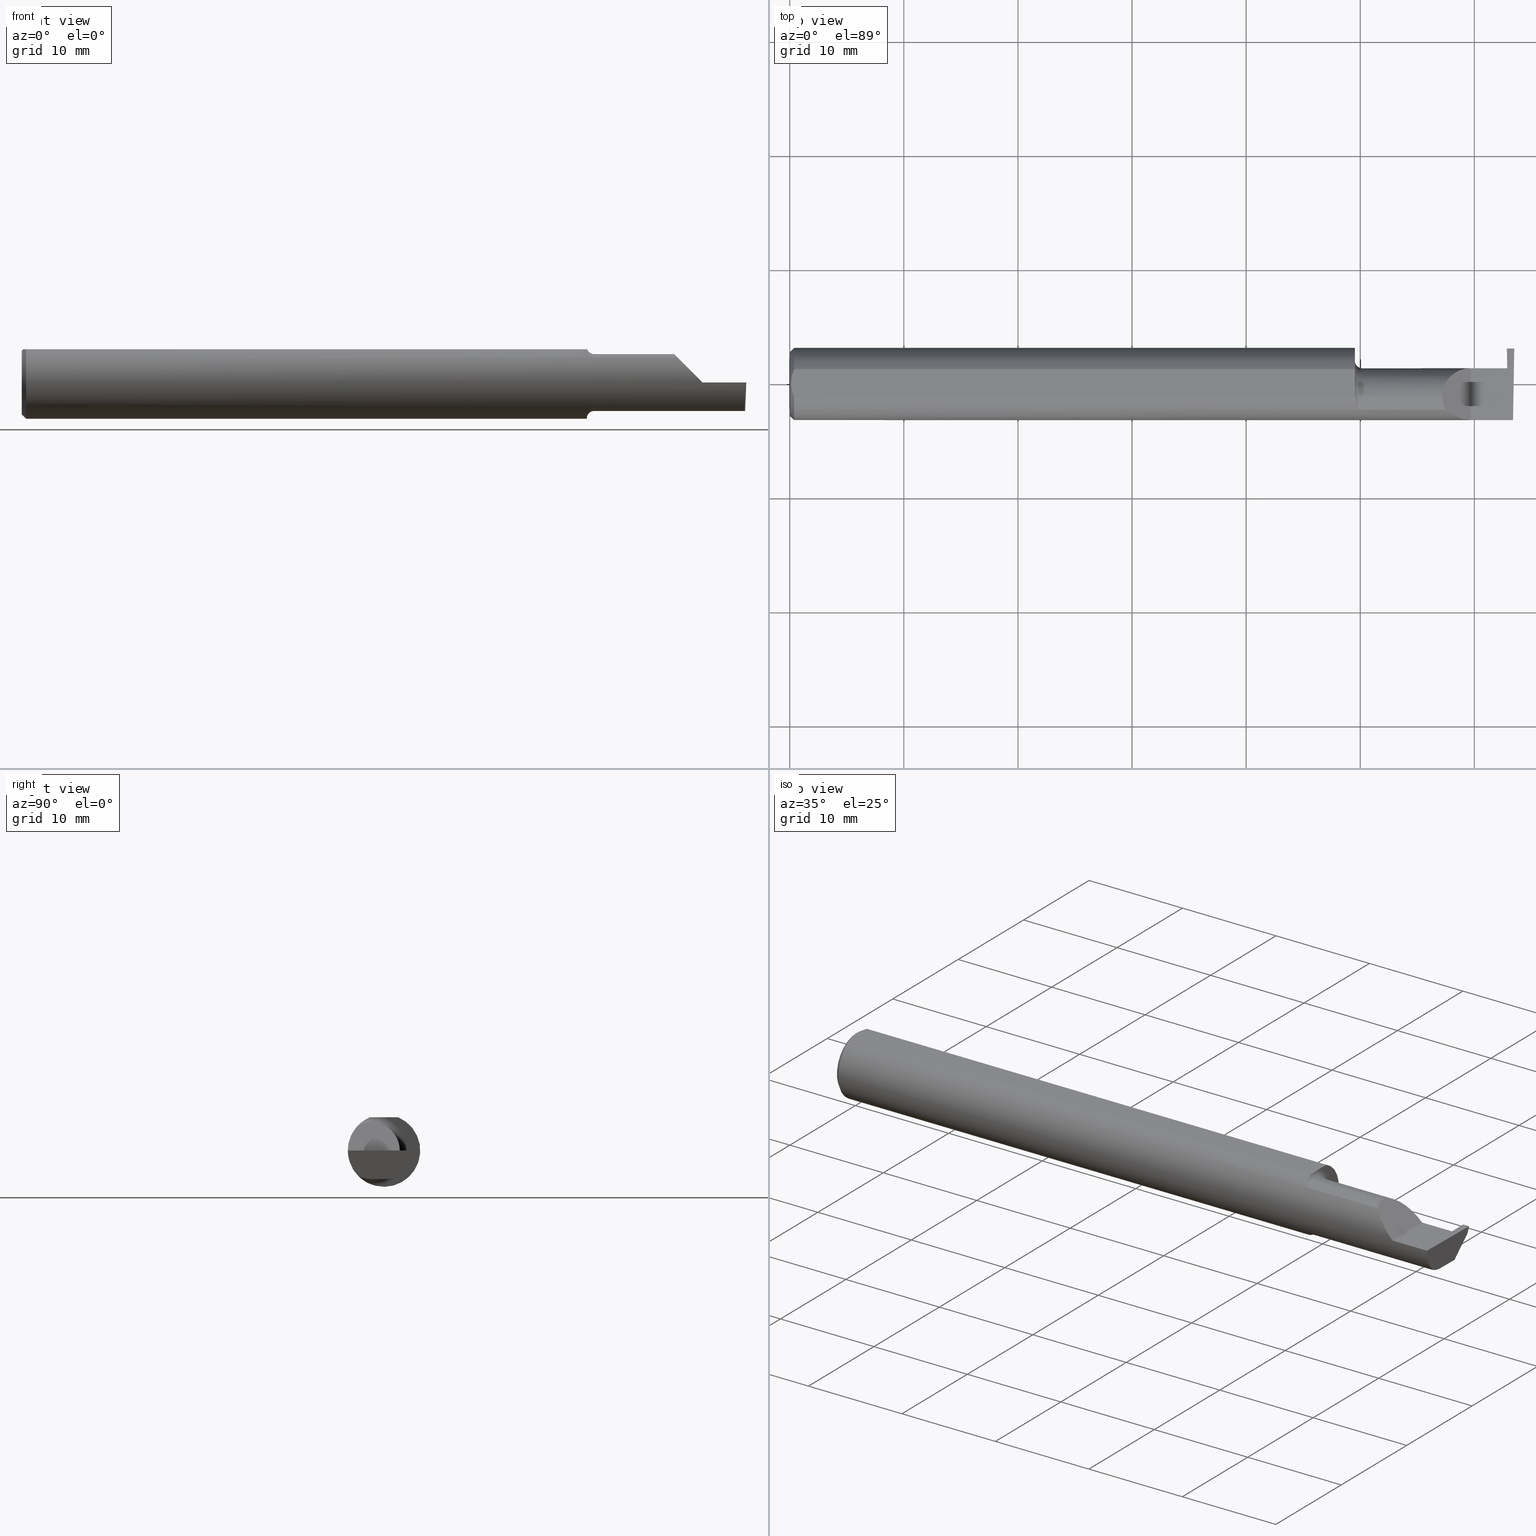
[diagram: canonical four-view strip — front | top / right | iso, engineering-drawing reading convention]
A machine part, canonical four-view strip (front | top / right | iso — engineering-drawing reading convention). The complete STEP part file that produces these views, byte-faithful:
ISO-10303-21;
HEADER;
FILE_DESCRIPTION (( 'STEP AP203' ),
    '1' );
FILE_NAME ('220806-GT025Q-8.STEP',
    '2024-07-08T23:06:09',
    ( '' ),
    ( '' ),
    'SwSTEP 2.0',
    'SolidWorks 2024',
    '' );
FILE_SCHEMA (( 'CONFIG_CONTROL_DESIGN' ));
ENDSEC;

DATA;
#1 = EDGE_LOOP ( 'NONE', ( #462, #197, #720, #135, #587 ) ) ;
#2 = EDGE_CURVE ( 'NONE', #163, #261, #554, .T. ) ;
#3 = CARTESIAN_POINT ( 'NONE',  ( 2.479353376795600639, -0.04385000000000004172, -0.09799999999999998990 ) ) ;
#4 = VECTOR ( 'NONE', #217, 39.37007874015748143 ) ;
#5 = ORIENTED_EDGE ( 'NONE', *, *, #598, .T. ) ;
#6 = CARTESIAN_POINT ( 'NONE',  ( 1.964990549600693415, -0.08554147198584186040, 0.09096407607062395595 ) ) ;
#7 = CARTESIAN_POINT ( 'NONE',  ( 1.950242610568498236, -0.03840785182185595115, -0.1189375631818110762 ) ) ;
#8 = EDGE_CURVE ( 'NONE', #333, #769, #682, .T. ) ;
#9 = CC_DESIGN_DATE_AND_TIME_ASSIGNMENT ( #105, #283, ( #356 ) ) ;
#10 = ORIENTED_EDGE ( 'NONE', *, *, #147, .T. ) ;
#11 = DIRECTION ( 'NONE',  ( 0.000000000000000000, 0.000000000000000000, 1.000000000000000000 ) ) ;
#12 = LINE ( 'NONE', #786, #535 ) ;
#13 = EDGE_CURVE ( 'NONE', #578, #333, #172, .T. ) ;
#14 = ORIENTED_EDGE ( 'NONE', *, *, #110, .T. ) ;
#15 = CIRCLE ( 'NONE', #766, 0.1098500000000000032 ) ;
#16 = DIRECTION ( 'NONE',  ( 0.000000000000000000, 0.000000000000000000, 1.000000000000000000 ) ) ;
#17 = PLANE ( 'NONE',  #33 ) ;
#18 = VECTOR ( 'NONE', #441, 39.37007874015748854 ) ;
#19 = ORIENTED_EDGE ( 'NONE', *, *, #178, .T. ) ;
#20 = EDGE_CURVE ( 'NONE', #532, #338, #370, .T. ) ;
#21 = APPROVAL_ROLE ( '' ) ;
#22 = CARTESIAN_POINT ( 'NONE',  ( 2.480918903665495279, 0.05424136207626867323, -0.1499086997478104033 ) ) ;
#23 = CARTESIAN_POINT ( 'NONE',  ( 2.263628075281542529, -0.09015216647662421812, 0.08637192471845822617 ) ) ;
#24 = DIRECTION ( 'NONE',  ( -1.000000000000000000, -0.000000000000000000, -0.000000000000000000 ) ) ;
#25 = DIRECTION ( 'NONE',  ( -0.000000000000000000, 1.000000000000000000, 0.000000000000000000 ) ) ;
#26 = DESIGN_CONTEXT ( 'detailed design', #564, 'design' ) ;
#27 = LINE ( 'NONE', #146, #373 ) ;
#28 = CARTESIAN_POINT ( 'NONE',  ( 1.949999999999999956, -0.007185469346090044528, 0.1148500000000000076 ) ) ;
#29 = ADVANCED_FACE ( 'NONE', ( #32 ), #46, .F. ) ;
#30 = VECTOR ( 'NONE', #736, 39.37007874015748143 ) ;
#31 = CARTESIAN_POINT ( 'NONE',  ( 0.01499999999999999944, 0.000000000000000000, 0.000000000000000000 ) ) ;
#32 = FACE_OUTER_BOUND ( 'NONE', #56, .T. ) ;
#33 = AXIS2_PLACEMENT_3D ( 'NONE', #89, #328, #749 ) ;
#34 = ORIENTED_EDGE ( 'NONE', *, *, #266, .F. ) ;
#35 = B_SPLINE_CURVE_WITH_KNOTS ( 'NONE', 3,
 ( #534, #580, #235, #652, #403, #102, #112, #343, #353, #54, #298, #544 ),
 .UNSPECIFIED., .F., .F.,
 ( 4, 2, 2, 2, 2, 4 ),
 ( 1.963988863383734834E-07, 0.0002052720857047455965, 0.0004103477725231528491, 0.0008204991461599567834, 0.001230650519796760555, 0.001640801893433564435 ),
 .UNSPECIFIED. ) ;
#36 = DIRECTION ( 'NONE',  ( -0.000000000000000000, 1.000000000000000000, -0.000000000000000000 ) ) ;
#37 = DIMENSIONAL_EXPONENTS ( 1.000000000000000000, 0.000000000000000000, 0.000000000000000000, 0.000000000000000000, 0.000000000000000000, 0.000000000000000000, 0.000000000000000000 ) ;
#38 = EDGE_CURVE ( 'NONE', #551, #261, #357, .T. ) ;
#39 = CARTESIAN_POINT ( 'NONE',  ( 0.009410502401328750890, 0.03310661131402438395, 0.1148499999999999938 ) ) ;
#40 = ORIENTED_EDGE ( 'NONE', *, *, #326, .T. ) ;
#41 = DIRECTION ( 'NONE',  ( 1.000000000000000000, 0.000000000000000000, 0.000000000000000000 ) ) ;
#42 = CARTESIAN_POINT ( 'NONE',  ( 0.004999999999999962808, 0.008410227287019804779, 0.1148500000000000076 ) ) ;
#43 = COORDINATED_UNIVERSAL_TIME_OFFSET ( 8, 0, .BEHIND. ) ;
#44 = CARTESIAN_POINT ( 'NONE',  ( 0.01499999999999999944, -0.04895916665957456698, 0.1148500000000000076 ) ) ;
#45 = LOCAL_TIME ( 16, 6, 9.000000000000000000, #43 ) ;
#46 = PLANE ( 'NONE',  #422 ) ;
#47 = EDGE_LOOP ( 'NONE', ( #282, #437, #708, #542, #430 ) ) ;
#48 = EDGE_CURVE ( 'NONE', #562, #516, #635, .T. ) ;
#49 = VECTOR ( 'NONE', #145, 39.37007874015748854 ) ;
#50 = LINE ( 'NONE', #293, #204 ) ;
#51 = ORIENTED_EDGE ( 'NONE', *, *, #91, .F. ) ;
#52 = DIRECTION ( 'NONE',  ( -0.03042981077198583101, -0.3254173858243484818, -0.9450807116958995779 ) ) ;
#53 = ORIENTED_EDGE ( 'NONE', *, *, #502, .T. ) ;
#54 = CARTESIAN_POINT ( 'NONE',  ( 1.951929090759344287, -0.05370719728932715764, -0.1128289886859672325 ) ) ;
#55 = AXIS2_PLACEMENT_3D ( 'NONE', #417, #665, #312 ) ;
#56 = EDGE_LOOP ( 'NONE', ( #5, #291 ) ) ;
#57 = CARTESIAN_POINT ( 'NONE',  ( 1.959117122045868742, -0.07738857672815888100, 0.09808127502738701875 ) ) ;
#58 = VECTOR ( 'NONE', #219, 39.37007874015748143 ) ;
#59 = CARTESIAN_POINT ( 'NONE',  ( 1.949999999999999956, -0.03284222813693379872, -0.1205938689030582739 ) ) ;
#60 = ORIENTED_EDGE ( 'NONE', *, *, #514, .T. ) ;
#61 = CARTESIAN_POINT ( 'NONE',  ( 1.966486677516400272, -0.08696861555842264058, 0.08959154238194114162 ) ) ;
#62 = B_SPLINE_CURVE_WITH_KNOTS ( 'NONE', 3,
 ( #327, #268, #149, #438, #28, #442 ),
 .UNSPECIFIED., .F., .F.,
 ( 4, 2, 4 ),
 ( 0.009485158816280120364, 0.01004274199597734486, 0.01060032517567456936 ),
 .UNSPECIFIED. ) ;
#63 = PLANE ( 'NONE',  #82 ) ;
#64 = ORIENTED_EDGE ( 'NONE', *, *, #141, .T. ) ;
#65 = CARTESIAN_POINT ( 'NONE',  ( 1.954335346929611639, -0.06618116991694673878, 0.1062694618620808051 ) ) ;
#66 = DIRECTION ( 'NONE',  ( -1.000000000000000000, -0.000000000000000000, -0.000000000000000000 ) ) ;
#67 = VECTOR ( 'NONE', #198, 39.37007874015748143 ) ;
#68 = VERTEX_POINT ( 'NONE', #767 ) ;
#69 = EDGE_CURVE ( 'NONE', #607, #111, #27, .T. ) ;
#70 = DIRECTION ( 'NONE',  ( 0.000000000000000000, 0.000000000000000000, 1.000000000000000000 ) ) ;
#71 = CARTESIAN_POINT ( 'NONE',  ( 1.950000000000000178, 0.04895916665957496944, 0.1148500000000000076 ) ) ;
#72 = VECTOR ( 'NONE', #241, 39.37007874015748143 ) ;
#73 = EDGE_LOOP ( 'NONE', ( #117, #397, #784, #97, #205, #529, #426, #34 ) ) ;
#74 = DIRECTION ( 'NONE',  ( -1.000000000000000000, -0.000000000000000000, -0.000000000000000000 ) ) ;
#75 = CARTESIAN_POINT ( 'NONE',  ( 1.951339737573316135, -0.04810771292169493257, 0.1148500000000000215 ) ) ;
#76 = ORIENTED_EDGE ( 'NONE', *, *, #120, .F. ) ;
#77 = PERSON_AND_ORGANIZATION ( #209, #107 ) ;
#78 = FACE_OUTER_BOUND ( 'NONE', #547, .T. ) ;
#79 = ORIENTED_EDGE ( 'NONE', *, *, #171, .T. ) ;
#80 = DIRECTION ( 'NONE',  ( 0.000000000000000000, 0.0006094513490878756884, -0.9999998142845092364 ) ) ;
#81 = PRODUCT ( '220806-GT025Q-8', '220806-GT025Q-8', '', ( #746 ) ) ;
#82 = AXIS2_PLACEMENT_3D ( 'NONE', #734, #309, #314 ) ;
#83 = EDGE_LOOP ( 'NONE', ( #341, #468, #148, #627, #53, #322 ) ) ;
#84 = CARTESIAN_POINT ( 'NONE',  ( 2.287163018370355072, -0.1127002472623169216, 0.06283698162964553025 ) ) ;
#85 = DIRECTION ( 'NONE',  ( -1.000000000000000000, -0.000000000000000000, -0.000000000000000000 ) ) ;
#86 = EDGE_CURVE ( 'NONE', #650, #748, #550, .T. ) ;
#87 = ORIENTED_EDGE ( 'NONE', *, *, #523, .F. ) ;
#88 = APPLICATION_PROTOCOL_DEFINITION ( 'international standard', 'config_control_design', 1994, #706 ) ;
#89 = CARTESIAN_POINT ( 'NONE',  ( 2.500000000000000000, 0.07735323199453268683, -0.09800000000000001765 ) ) ;
#90 = DIRECTION ( 'NONE',  ( 0.7071067811865476838, 0.000000000000000000, -0.7071067811865473507 ) ) ;
#91 = EDGE_CURVE ( 'NONE', #667, #267, #274, .T. ) ;
#92 =( GEOMETRIC_REPRESENTATION_CONTEXT ( 3 ) GLOBAL_UNCERTAINTY_ASSIGNED_CONTEXT ( ( #689 ) ) GLOBAL_UNIT_ASSIGNED_CONTEXT ( ( #380, #263, #632 ) ) REPRESENTATION_CONTEXT ( 'NONE', 'WORKASPACE' ) );
#93 = LINE ( 'NONE', #22, #313 ) ;
#94 = APPROVAL ( #202, 'UNSPECIFIED' ) ;
#95 = CARTESIAN_POINT ( 'NONE',  ( 0.01499999999999987454, 0.04895916665957496944, 0.1148500000000000076 ) ) ;
#96 = AXIS2_PLACEMENT_3D ( 'NONE', #323, #621, #80 ) ;
#97 = ORIENTED_EDGE ( 'NONE', *, *, #8, .F. ) ;
#98 = DIRECTION ( 'NONE',  ( 0.000000000000000000, 0.000000000000000000, -1.000000000000000000 ) ) ;
#99 = DIRECTION ( 'NONE',  ( -1.000000000000000000, -0.000000000000000000, -0.000000000000000000 ) ) ;
#100 = ORIENTED_EDGE ( 'NONE', *, *, #272, .T. ) ;
#101 = PERSON_AND_ORGANIZATION ( #209, #107 ) ;
#102 = CARTESIAN_POINT ( 'NONE',  ( 1.960226514481664850, -0.07966992494485836129, -0.09623747760188229583 ) ) ;
#103 = FACE_OUTER_BOUND ( 'NONE', #47, .T. ) ;
#104 = VERTEX_POINT ( 'NONE', #473 ) ;
#105 = DATE_AND_TIME ( #228, #480 ) ;
#106 = CARTESIAN_POINT ( 'NONE',  ( 2.494033449660867152, -0.09015216647662482874, -0.08637192471845768493 ) ) ;
#107 = ORGANIZATION ( 'UNSPECIFIED', 'UNSPECIFIED', '' ) ;
#108 = EDGE_LOOP ( 'NONE', ( #732, #601, #126, #434 ) ) ;
#109 = DATE_AND_TIME ( #770, #173 ) ;
#110 = EDGE_CURVE ( 'NONE', #193, #650, #404, .T. ) ;
#111 = VERTEX_POINT ( 'NONE', #281 ) ;
#112 = CARTESIAN_POINT ( 'NONE',  ( 1.958278800716857448, -0.07573621487658313556, -0.09938639293507191275 ) ) ;
#113 = ORIENTED_EDGE ( 'NONE', *, *, #586, .T. ) ;
#114 = FACE_OUTER_BOUND ( 'NONE', #256, .T. ) ;
#115 = EDGE_CURVE ( 'NONE', #182, #248, #643, .T. ) ;
#116 = CARTESIAN_POINT ( 'NONE',  ( 0.01195732443765547617, -0.04120008761723503721, 0.1148499999999999938 ) ) ;
#117 = ORIENTED_EDGE ( 'NONE', *, *, #514, .F. ) ;
#118 = LINE ( 'NONE', #552, #154 ) ;
#119 = CLOSED_SHELL ( 'NONE', ( #161, #429, #715, #628, #448, #377, #530, #709, #458, #453, #29, #654, #344, #152, #408, #569, #382, #398, #211, #661, #296, #125 ) ) ;
#120 = EDGE_CURVE ( 'NONE', #640, #551, #515, .T. ) ;
#121 = FACE_OUTER_BOUND ( 'NONE', #379, .T. ) ;
#122 = EDGE_LOOP ( 'NONE', ( #735, #223, #307, #716, #14, #233, #79 ) ) ;
#123 = CARTESIAN_POINT ( 'NONE',  ( 1.951326891871145719, -0.04895916665872474677, 0.1148500000000000076 ) ) ;
#124 = CARTESIAN_POINT ( 'NONE',  ( 1.951365755776839572, -0.04385000000000001397, 0.1148500000000000076 ) ) ;
#125 = ADVANCED_FACE ( 'NONE', ( #340 ), #695, .F. ) ;
#126 = ORIENTED_EDGE ( 'NONE', *, *, #622, .F. ) ;
#127 = DIRECTION ( 'NONE',  ( -1.000000000000000000, -0.000000000000000000, -0.000000000000000000 ) ) ;
#128 = ORIENTED_EDGE ( 'NONE', *, *, #485, .T. ) ;
#129 = CARTESIAN_POINT ( 'NONE',  ( 1.972502509400819060, -0.09015216647698111319, 0.08637192471808594063 ) ) ;
#130 = CARTESIAN_POINT ( 'NONE',  ( 3.749399456654637998E-32, -0.1248500000000000026, 3.061616997868380676E-16 ) ) ;
#131 = AXIS2_PLACEMENT_3D ( 'NONE', #31, #506, #757 ) ;
#132 = EDGE_LOOP ( 'NONE', ( #375, #723, #405 ) ) ;
#133 = DATE_AND_TIME ( #675, #383 ) ;
#134 = CARTESIAN_POINT ( 'NONE',  ( 2.474499999999999922, -0.04385000000000001397, 0.000000000000000000 ) ) ;
#135 = ORIENTED_EDGE ( 'NONE', *, *, #231, .F. ) ;
#136 = FACE_OUTER_BOUND ( 'NONE', #685, .T. ) ;
#137 = FACE_OUTER_BOUND ( 'NONE', #572, .T. ) ;
#138 = CARTESIAN_POINT ( 'NONE',  ( 2.224749999999999783, -0.09015216647662482874, -0.08637192471845768493 ) ) ;
#139 = LOCAL_TIME ( 16, 6, 9.000000000000000000, #717 ) ;
#140 = DIRECTION ( 'NONE',  ( -0.03489418134011375294, -0.0006090802009084595901, 0.9993908270190957621 ) ) ;
#141 = EDGE_CURVE ( 'NONE', #650, #111, #238, .T. ) ;
#142 = AXIS2_PLACEMENT_3D ( 'NONE', #439, #443, #683 ) ;
#143 = CARTESIAN_POINT ( 'NONE',  ( 2.252000000000000668, -0.06008937020638503712, 0.09799999999999998990 ) ) ;
#144 = CARTESIAN_POINT ( 'NONE',  ( 1.974999999999999867, -0.04385000000000001397, 0.09800000000000000377 ) ) ;
#145 = DIRECTION ( 'NONE',  ( -0.03866673033866090819, 0.3253246823342272331, 0.9448114812114909444 ) ) ;
#146 = CARTESIAN_POINT ( 'NONE',  ( 0.01499999999999999944, 0.000000000000000000, -0.1248500000000000026 ) ) ;
#147 = EDGE_CURVE ( 'NONE', #213, #748, #758, .T. ) ;
#148 = ORIENTED_EDGE ( 'NONE', *, *, #738, .F. ) ;
#149 = CARTESIAN_POINT ( 'NONE',  ( 1.951090261609496279, -0.02916889382056605043, 0.1148499999999999938 ) ) ;
#150 = CARTESIAN_POINT ( 'NONE',  ( 1.974999999999999867, -0.04385000000000000009, -0.1230000000000000121 ) ) ;
#151 = DIRECTION ( 'NONE',  ( 0.000000000000000000, 0.000000000000000000, 1.000000000000000000 ) ) ;
#152 = ADVANCED_FACE ( 'NONE', ( #103 ), #391, .T. ) ;
#153 = PERSON_AND_ORGANIZATION ( #209, #107 ) ;
#154 = VECTOR ( 'NONE', #302, 39.37007874015748854 ) ;
#155 = CC_DESIGN_APPROVAL ( #94, ( #594 ) ) ;
#156 = CARTESIAN_POINT ( 'NONE',  ( 2.263628075281542529, -0.09015216647662421812, 0.08637192471845822617 ) ) ;
#157 = DIRECTION ( 'NONE',  ( 0.000000000000000000, 0.000000000000000000, -1.000000000000000000 ) ) ;
#158 = ORIENTED_EDGE ( 'NONE', *, *, #13, .F. ) ;
#159 = PERSON_AND_ORGANIZATION_ROLE ( 'creator' ) ;
#160 = PLANE ( 'NONE',  #620 ) ;
#161 = ADVANCED_FACE ( 'NONE', ( #395 ), #577, .T. ) ;
#162 = DIRECTION ( 'NONE',  ( 1.000000000000000000, -0.000000000000000000, -0.000000000000000000 ) ) ;
#163 = VERTEX_POINT ( 'NONE', #783 ) ;
#164 = PERSON_AND_ORGANIZATION_ROLE ( 'creator' ) ;
#165 = CARTESIAN_POINT ( 'NONE',  ( 1.951365755776839572, -0.04385000000000001397, 0.1148500000000000076 ) ) ;
#166 = ORIENTED_EDGE ( 'NONE', *, *, #91, .T. ) ;
#167 = SECURITY_CLASSIFICATION_LEVEL ( 'unclassified' ) ;
#168 = CARTESIAN_POINT ( 'NONE',  ( 2.224749999999999783, -0.09015216647662482874, 0.08637192471845768493 ) ) ;
#169 = AXIS2_PLACEMENT_3D ( 'NONE', #179, #308, #671 ) ;
#170 = CIRCLE ( 'NONE', #200, 0.1248500000000000026 ) ;
#171 = EDGE_CURVE ( 'NONE', #748, #562, #694, .T. ) ;
#172 =( BOUNDED_CURVE ( )  B_SPLINE_CURVE ( 3, ( #23, #750, #143, #387 ),
 .UNSPECIFIED., .F., .T. ) 
 B_SPLINE_CURVE_WITH_KNOTS ( ( 4, 4 ),
 ( 5.791092865617133434, 6.283185307179586232 ),
 .UNSPECIFIED. ) 
 CURVE ( )  GEOMETRIC_REPRESENTATION_ITEM ( )  RATIONAL_B_SPLINE_CURVE ( ( 1.000000000000000000, 0.9799220177372784946, 0.9799220177372784946, 1.000000000000000000 ) ) 
 REPRESENTATION_ITEM ( '' )  );
#173 = LOCAL_TIME ( 16, 6, 9.000000000000000000, #402 ) ;
#174 = ORIENTED_EDGE ( 'NONE', *, *, #604, .F. ) ;
#175 = CONICAL_SURFACE ( 'NONE', #131, 0.1248500000000000026, 0.7853981633974480570 ) ;
#176 = DIRECTION ( 'NONE',  ( 1.000000000000000000, 0.000000000000000000, 0.000000000000000000 ) ) ;
#177 = ORIENTED_EDGE ( 'NONE', *, *, #350, .F. ) ;
#178 = EDGE_CURVE ( 'NONE', #104, #596, #676, .T. ) ;
#179 = CARTESIAN_POINT ( 'NONE',  ( 1.974999999999999867, -0.04385000000000001397, 0.000000000000000000 ) ) ;
#180 = B_SPLINE_CURVE_WITH_KNOTS ( 'NONE', 3,
 ( #476, #7, #59, #185 ),
 .UNSPECIFIED., .F., .F.,
 ( 4, 4 ),
 ( 0.001640801893433564435, 0.002088276671954477758 ),
 .UNSPECIFIED. ) ;
#181 = CARTESIAN_POINT ( 'NONE',  ( 0.004999999999999964542, -0.008410771716546833199, 0.1148500000000000215 ) ) ;
#182 = VERTEX_POINT ( 'NONE', #303 ) ;
#183 = EDGE_CURVE ( 'NONE', #465, #677, #742, .T. ) ;
#184 = DIRECTION ( 'NONE',  ( 0.000000000000000000, 0.000000000000000000, 1.000000000000000000 ) ) ;
#185 = CARTESIAN_POINT ( 'NONE',  ( 1.950000000000000178, -0.02715330672748003313, -0.1218614805168695830 ) ) ;
#186 = AXIS2_PLACEMENT_3D ( 'NONE', #214, #501, #16 ) ;
#187 = AXIS2_PLACEMENT_3D ( 'NONE', #450, #563, #692 ) ;
#188 = ORIENTED_EDGE ( 'NONE', *, *, #478, .F. ) ;
#189 = CARTESIAN_POINT ( 'NONE',  ( 2.494253479596434175, -0.06008937020638530080, -0.09800000000000001765 ) ) ;
#190 = AXIS2_PLACEMENT_3D ( 'NONE', #693, #573, #698 ) ;
#191 = CARTESIAN_POINT ( 'NONE',  ( 2.474831655309489786, 0.05414656493488109734, -0.008143655253979618230 ) ) ;
#192 = EDGE_CURVE ( 'NONE', #640, #647, #247, .T. ) ;
#193 = VERTEX_POINT ( 'NONE', #71 ) ;
#194 = CARTESIAN_POINT ( 'NONE',  ( 2.494536841675280670, -0.04385000000000003478, -0.09799999999999998990 ) ) ;
#195 = CARTESIAN_POINT ( 'NONE',  ( 2.475482208140546536, 0.05115612325138354372, -0.02403823089877875352 ) ) ;
#196 = MANIFOLD_SOLID_BREP ( 'Front Angle', #119 ) ;
#197 = ORIENTED_EDGE ( 'NONE', *, *, #183, .F. ) ;
#198 = DIRECTION ( 'NONE',  ( -0.03699114979479236481, 0.7066228325057374304, 0.7066228325057348769 ) ) ;
#199 = DIRECTION ( 'NONE',  ( 0.04089967808029263546, 0.000000000000000000, -0.9991632580979589173 ) ) ;
#200 = AXIS2_PLACEMENT_3D ( 'NONE', #777, #41, #284 ) ;
#201 = ORIENTED_EDGE ( 'NONE', *, *, #231, .T. ) ;
#202 = APPROVAL_STATUS ( 'not_yet_approved' ) ;
#203 = CARTESIAN_POINT ( 'NONE',  ( 2.252000000000000668, 0.01355707088743670317, 0.09799999999999996214 ) ) ;
#204 = VECTOR ( 'NONE', #410, 39.37007874015747433 ) ;
#205 = ORIENTED_EDGE ( 'NONE', *, *, #236, .T. ) ;
#206 = PERSON_AND_ORGANIZATION_ROLE ( 'design_owner' ) ;
#207 = LINE ( 'NONE', #455, #755 ) ;
#208 = ORIENTED_EDGE ( 'NONE', *, *, #586, .F. ) ;
#209 = PERSON ( 'UNSPECIFIED', 'UNSPECIFIED', 'UNSPECIFIED', ('UNSPECIFIED'), ('UNSPECIFIED'), ('UNSPECIFIED') ) ;
#210 =( LENGTH_UNIT ( ) NAMED_UNIT ( * ) SI_UNIT ( $, .METRE. ) );
#211 = ADVANCED_FACE ( 'NONE', ( #317 ), #63, .F. ) ;
#212 = LINE ( 'NONE', #565, #460 ) ;
#213 = VERTEX_POINT ( 'NONE', #725 ) ;
#214 = CARTESIAN_POINT ( 'NONE',  ( 1.974999999999999867, -0.04385000000000001397, 0.000000000000000000 ) ) ;
#215 = FACE_OUTER_BOUND ( 'NONE', #237, .T. ) ;
#216 = EDGE_CURVE ( 'NONE', #248, #465, #771, .T. ) ;
#217 = DIRECTION ( 'NONE',  ( 1.000000000000000000, 0.000000000000000000, 0.000000000000000000 ) ) ;
#218 = FACE_OUTER_BOUND ( 'NONE', #384, .T. ) ;
#219 = DIRECTION ( 'NONE',  ( 1.000000000000000000, 0.000000000000000000, 0.000000000000000000 ) ) ;
#220 = ORIENTED_EDGE ( 'NONE', *, *, #38, .T. ) ;
#221 = CARTESIAN_POINT ( 'NONE',  ( 2.474388613855386332, 0.1230871535114424209, 0.002721691421983212303 ) ) ;
#222 = CARTESIAN_POINT ( 'NONE',  ( 0.01499999999999999944, 0.000000000000000000, 0.000000000000000000 ) ) ;
#223 = ORIENTED_EDGE ( 'NONE', *, *, #311, .T. ) ;
#224 = PERSON_AND_ORGANIZATION_ROLE ( 'design_supplier' ) ;
#225 = PLANE ( 'NONE',  #299 ) ;
#226 = DIRECTION ( 'NONE',  ( 3.192376091676807012E-05, 0.9999999994904366085, -2.817425088418965867E-16 ) ) ;
#227 = VECTOR ( 'NONE', #162, 39.37007874015748143 ) ;
#228 = CALENDAR_DATE ( 2024, 8, 7 ) ;
#229 = LINE ( 'NONE', #588, #782 ) ;
#230 = ORIENTED_EDGE ( 'NONE', *, *, #390, .T. ) ;
#231 = EDGE_CURVE ( 'NONE', #319, #248, #255, .T. ) ;
#232 = DIRECTION ( 'NONE',  ( 0.000000000000000000, 0.000000000000000000, 1.000000000000000000 ) ) ;
#233 = ORIENTED_EDGE ( 'NONE', *, *, #86, .T. ) ;
#234 = DATE_TIME_ROLE ( 'creation_date' ) ;
#235 = CARTESIAN_POINT ( 'NONE',  ( 1.969784064659362954, -0.08911389870154515225, -0.08746251087962811366 ) ) ;
#236 = EDGE_CURVE ( 'NONE', #333, #182, #566, .T. ) ;
#237 = EDGE_LOOP ( 'NONE', ( #220, #739, #511, #421 ) ) ;
#238 = CIRCLE ( 'NONE', #249, 0.1248500000000000026 ) ;
#239 = VECTOR ( 'NONE', #407, 39.37007874015748143 ) ;
#240 = DIRECTION ( 'NONE',  ( 0.000000000000000000, -0.7071067811865487940, -0.7071067811865462405 ) ) ;
#241 = DIRECTION ( 'NONE',  ( 0.7071067811865476838, 8.659560562354930393E-17, 0.7071067811865473507 ) ) ;
#242 = ORIENTED_EDGE ( 'NONE', *, *, #508, .T. ) ;
#243 = CARTESIAN_POINT ( 'NONE',  ( 2.496652745773396020, 0.07741163850316090667, -0.09800000000000001765 ) ) ;
#244 = CARTESIAN_POINT ( 'NONE',  ( 2.475160734290017928, 0.05314349951121612181, -0.01618353831829611247 ) ) ;
#245 = VERTEX_POINT ( 'NONE', #374 ) ;
#246 = DIRECTION ( 'NONE',  ( -1.224646799147352221E-16, 0.000000000000000000, -1.000000000000000000 ) ) ;
#247 = LINE ( 'NONE', #538, #324 ) ;
#248 = VERTEX_POINT ( 'NONE', #488 ) ;
#249 = AXIS2_PLACEMENT_3D ( 'NONE', #222, #722, #289 ) ;
#250 = CARTESIAN_POINT ( 'NONE',  ( 2.495688583004118666, -0.1248499869621840785, -5.705736120969982501E-05 ) ) ;
#251 = CARTESIAN_POINT ( 'NONE',  ( 1.949999999999999956, -0.04385000000000001397, 0.09800000000000000377 ) ) ;
#252 =( BOUNDED_CURVE ( )  B_SPLINE_CURVE ( 3, ( #334, #330, #84, #271 ),
 .UNSPECIFIED., .F., .T. ) 
 B_SPLINE_CURVE_WITH_KNOTS ( ( 4, 4 ),
 ( 4.712388980384690562, 5.476375539154175520 ),
 .UNSPECIFIED. ) 
 CURVE ( )  GEOMETRIC_REPRESENTATION_ITEM ( )  RATIONAL_B_SPLINE_CURVE ( ( 1.000000000000000000, 0.9519489620492029847, 0.9519489620492029847, 1.000000000000000000 ) ) 
 REPRESENTATION_ITEM ( '' )  );
#253 = CARTESIAN_POINT ( 'NONE',  ( 2.475482208140546536, 0.1138861372810479888, -0.02400000000000000050 ) ) ;
#254 = EDGE_CURVE ( 'NONE', #667, #319, #428, .T. ) ;
#255 = LINE ( 'NONE', #737, #277 ) ;
#256 = EDGE_LOOP ( 'NONE', ( #745, #401, #763, #619 ) ) ;
#257 = CARTESIAN_POINT ( 'NONE',  ( 2.474499999999999922, 0.1221499999999999808, -3.306546357697866753E-19 ) ) ;
#258 = DIRECTION ( 'NONE',  ( 0.000000000000000000, 0.000000000000000000, 1.000000000000000000 ) ) ;
#259 = VECTOR ( 'NONE', #540, 39.37007874015748854 ) ;
#260 = EDGE_CURVE ( 'NONE', #486, #640, #12, .T. ) ;
#261 = VERTEX_POINT ( 'NONE', #599 ) ;
#262 = CC_DESIGN_PERSON_AND_ORGANIZATION_ASSIGNMENT ( #77, #159, ( #594 ) ) ;
#263 =( NAMED_UNIT ( * ) PLANE_ANGLE_UNIT ( ) SI_UNIT ( $, .RADIAN. ) );
#264 = FACE_OUTER_BOUND ( 'NONE', #482, .T. ) ;
#265 = AXIS2_PLACEMENT_3D ( 'NONE', #526, #99, #151 ) ;
#266 = EDGE_CURVE ( 'NONE', #245, #465, #545, .T. ) ;
#267 = VERTEX_POINT ( 'NONE', #614 ) ;
#268 = CARTESIAN_POINT ( 'NONE',  ( 1.951365755776839572, -0.03650543323727816619, 0.1148500000000000215 ) ) ;
#269 = CYLINDRICAL_SURFACE ( 'NONE', #386, 0.1248500000000000026 ) ;
#270 = ORIENTED_EDGE ( 'NONE', *, *, #679, .T. ) ;
#271 = CARTESIAN_POINT ( 'NONE',  ( 2.263628075281542529, -0.09015216647662421812, 0.08637192471845822617 ) ) ;
#272 = EDGE_CURVE ( 'NONE', #532, #536, #648, .T. ) ;
#273 = CARTESIAN_POINT ( 'NONE',  ( 0.01499999999999999944, 0.000000000000000000, 0.000000000000000000 ) ) ;
#274 = LINE ( 'NONE', #707, #227 ) ;
#275 = APPLICATION_PROTOCOL_DEFINITION ( 'international standard', 'config_control_design', 1994, #564 ) ;
#276 = FACE_OUTER_BOUND ( 'NONE', #132, .T. ) ;
#277 = VECTOR ( 'NONE', #546, 39.37007874015748143 ) ;
#278 = DIRECTION ( 'NONE',  ( -0.9995051766793262571, 0.01744044634007211117, 0.02617694830739122208 ) ) ;
#279 = ORIENTED_EDGE ( 'NONE', *, *, #744, .T. ) ;
#280 = DIRECTION ( 'NONE',  ( 0.01744642479411464761, 0.9998477995484629233, -2.135106780035675284E-18 ) ) ;
#281 = CARTESIAN_POINT ( 'NONE',  ( 0.01499999999999999944, 0.000000000000000000, -0.1248500000000000026 ) ) ;
#282 = ORIENTED_EDGE ( 'NONE', *, *, #192, .F. ) ;
#283 = DATE_TIME_ROLE ( 'classification_date' ) ;
#284 = DIRECTION ( 'NONE',  ( 0.000000000000000000, 0.000000000000000000, -1.000000000000000000 ) ) ;
#285 = DIRECTION ( 'NONE',  ( 1.000000000000000000, 0.000000000000000000, 0.000000000000000000 ) ) ;
#286 = APPROVAL_STATUS ( 'not_yet_approved' ) ;
#287 = CIRCLE ( 'NONE', #753, 0.1230000000000000121 ) ;
#288 = DIRECTION ( 'NONE',  ( 1.000000000000000000, 0.000000000000000000, -0.000000000000000000 ) ) ;
#289 = DIRECTION ( 'NONE',  ( 0.000000000000000000, 0.000000000000000000, 1.000000000000000000 ) ) ;
#290 = EDGE_CURVE ( 'NONE', #726, #557, #180, .T. ) ;
#291 = ORIENTED_EDGE ( 'NONE', *, *, #543, .T. ) ;
#292 = DATE_AND_TIME ( #590, #45 ) ;
#293 = CARTESIAN_POINT ( 'NONE',  ( 2.475482208140548313, -2.422866332892217311, -0.02554602750237028666 ) ) ;
#294 = VERTEX_POINT ( 'NONE', #306 ) ;
#295 = FACE_OUTER_BOUND ( 'NONE', #304, .T. ) ;
#296 = ADVANCED_FACE ( 'NONE', ( #121 ), #369, .F. ) ;
#297 = ORIENTED_EDGE ( 'NONE', *, *, #674, .F. ) ;
#298 = CARTESIAN_POINT ( 'NONE',  ( 1.951227715916084682, -0.04883822427082837314, -0.1150249279297937549 ) ) ;
#299 = AXIS2_PLACEMENT_3D ( 'NONE', #463, #718, #288 ) ;
#300 = ORIENTED_EDGE ( 'NONE', *, *, #651, .T. ) ;
#301 = AXIS2_PLACEMENT_3D ( 'NONE', #592, #576, #98 ) ;
#302 = DIRECTION ( 'NONE',  ( 0.02617296143184116158, -0.0004568507411563387400, 0.9996573249755575929 ) ) ;
#303 = CARTESIAN_POINT ( 'NONE',  ( 2.350000000000000089, 0.05414999999999988572, 1.836970198721028825E-17 ) ) ;
#304 = EDGE_LOOP ( 'NONE', ( #445, #521, #696, #653, #346 ) ) ;
#305 = CARTESIAN_POINT ( 'NONE',  ( 0.000000000000000000, 0.000000000000000000, -0.1098500000000000032 ) ) ;
#306 = CARTESIAN_POINT ( 'NONE',  ( 2.478606678051654022, 0.05420100202805254452, -0.08368513525299321743 ) ) ;
#307 = ORIENTED_EDGE ( 'NONE', *, *, #768, .T. ) ;
#308 = DIRECTION ( 'NONE',  ( -1.000000000000000000, -0.000000000000000000, -0.000000000000000000 ) ) ;
#309 = DIRECTION ( 'NONE',  ( 0.9992391710281357531, 0.01740988840156783637, 0.03489949668475364475 ) ) ;
#310 = ORIENTED_EDGE ( 'NONE', *, *, #20, .F. ) ;
#311 = EDGE_CURVE ( 'NONE', #516, #527, #492, .T. ) ;
#312 = DIRECTION ( 'NONE',  ( 0.05230942393459273726, 0.000000000000000000, -0.9986309249005015376 ) ) ;
#313 = VECTOR ( 'NONE', #140, 39.37007874015748854 ) ;
#314 = DIRECTION ( 'NONE',  ( 0.03490478697967554916, 0.000000000000000000, -0.9993906422645267851 ) ) ;
#315 = ORIENTED_EDGE ( 'NONE', *, *, #147, .F. ) ;
#316 = CARTESIAN_POINT ( 'NONE',  ( 1.974999999999999867, -0.09015216647662482874, 0.08637192471845768493 ) ) ;
#317 = FACE_OUTER_BOUND ( 'NONE', #605, .T. ) ;
#318 = EDGE_CURVE ( 'NONE', #111, #562, #703, .T. ) ;
#319 = VERTEX_POINT ( 'NONE', #499 ) ;
#320 = PLANE ( 'NONE',  #781 ) ;
#321 = APPROVAL_PERSON_ORGANIZATION ( #505, #94, #21 ) ;
#322 = ORIENTED_EDGE ( 'NONE', *, *, #775, .T. ) ;
#323 = CARTESIAN_POINT ( 'NONE',  ( 2.480918903665495279, 0.05424136207626867323, -0.1499086997478104033 ) ) ;
#324 = VECTOR ( 'NONE', #484, 39.37007874015748143 ) ;
#325 = ORIENTED_EDGE ( 'NONE', *, *, #684, .F. ) ;
#326 = EDGE_CURVE ( 'NONE', #294, #319, #93, .T. ) ;
#327 = CARTESIAN_POINT ( 'NONE',  ( 1.951365755776839572, -0.04385000000000001397, 0.1148500000000000076 ) ) ;
#328 = DIRECTION ( 'NONE',  ( -0.000000000000000000, 2.817424862263050982E-16, 1.000000000000000000 ) ) ;
#329 = EDGE_LOOP ( 'NONE', ( #60, #128, #300, #174, #76 ) ) ;
#330 = CARTESIAN_POINT ( 'NONE',  ( 2.317406910344188997, -0.1248500000000000304, 0.03259308965581166062 ) ) ;
#331 = DIRECTION ( 'NONE',  ( 1.000000000000000000, 0.000000000000000000, 0.000000000000000000 ) ) ;
#332 = CARTESIAN_POINT ( 'NONE',  ( 0.004999999999999990563, 1.454187663965904829E-17, 0.1148500000000000076 ) ) ;
#333 = VERTEX_POINT ( 'NONE', #451 ) ;
#334 = CARTESIAN_POINT ( 'NONE',  ( 2.350000000000000089, -0.1248500000000000026, 1.836970198721028825E-17 ) ) ;
#335 = PLANE ( 'NONE',  #190 ) ;
#336 = VECTOR ( 'NONE', #364, 39.37007874015748143 ) ;
#337 = CARTESIAN_POINT ( 'NONE',  ( 2.497382703856816377, 0.1221956850741156286, -0.09996573249755572044 ) ) ;
#338 = VERTEX_POINT ( 'NONE', #747 ) ;
#339 = CARTESIAN_POINT ( 'NONE',  ( 2.479353376795600639, -0.04385000000000004172, -0.09799999999999998990 ) ) ;
#340 = FACE_OUTER_BOUND ( 'NONE', #779, .T. ) ;
#341 = ORIENTED_EDGE ( 'NONE', *, *, #371, .F. ) ;
#342 = COORDINATED_UNIVERSAL_TIME_OFFSET ( 8, 0, .BEHIND. ) ;
#343 = CARTESIAN_POINT ( 'NONE',  ( 1.955064983703084458, -0.06736177101644112708, -0.1052426774175050650 ) ) ;
#344 = ADVANCED_FACE ( 'NONE', ( #276 ), #335, .T. ) ;
#345 = CARTESIAN_POINT ( 'NONE',  ( 1.949999999999999956, -0.04385000000000001397, 0.000000000000000000 ) ) ;
#346 = ORIENTED_EDGE ( 'NONE', *, *, #464, .T. ) ;
#347 = LINE ( 'NONE', #168, #634 ) ;
#348 = AXIS2_PLACEMENT_3D ( 'NONE', #134, #66, #258 ) ;
#349 = ORIENTED_EDGE ( 'NONE', *, *, #236, .F. ) ;
#350 = EDGE_CURVE ( 'NONE', #596, #182, #207, .T. ) ;
#351 = DIRECTION ( 'NONE',  ( -1.000000000000000000, -0.000000000000000000, -0.000000000000000000 ) ) ;
#352 = ORIENTED_EDGE ( 'NONE', *, *, #171, .F. ) ;
#353 = CARTESIAN_POINT ( 'NONE',  ( 1.953850144156349167, -0.06295012366509133983, -0.1079450122012245855 ) ) ;
#354 = ORIENTED_EDGE ( 'NONE', *, *, #390, .F. ) ;
#355 = CARTESIAN_POINT ( 'NONE',  ( 1.974999999999999867, -0.04385000000000001397, 0.000000000000000000 ) ) ;
#356 = SECURITY_CLASSIFICATION ( '', '', #167 ) ;
#357 = LINE ( 'NONE', #574, #719 ) ;
#358 = ORIENTED_EDGE ( 'NONE', *, *, #593, .T. ) ;
#359 = VECTOR ( 'NONE', #280, 39.37007874015748854 ) ;
#360 = DIRECTION ( 'NONE',  ( -1.000000000000000000, -0.000000000000000000, -0.000000000000000000 ) ) ;
#361 = CARTESIAN_POINT ( 'NONE',  ( 2.475482208140548313, -2.422866332892217311, -0.02554602750237028666 ) ) ;
#362 = ORIENTED_EDGE ( 'NONE', *, *, #183, .T. ) ;
#363 = CARTESIAN_POINT ( 'NONE',  ( 1.961053217927678949, -0.08094812012684945990, 0.09514231764822853044 ) ) ;
#364 = DIRECTION ( 'NONE',  ( 0.01742050049977532378, -0.9998482515673753346, -2.130797594924658404E-18 ) ) ;
#365 = EDGE_CURVE ( 'NONE', #104, #267, #688, .T. ) ;
#366 = ORIENTED_EDGE ( 'NONE', *, *, #110, .F. ) ;
#367 = PLANE ( 'NONE',  #55 ) ;
#368 = TOROIDAL_SURFACE ( 'NONE', #740, 0.1230000000000000121, 0.02499999999999980016 ) ;
#369 = PLANE ( 'NONE',  #662 ) ;
#370 = LINE ( 'NONE', #138, #558 ) ;
#371 = EDGE_CURVE ( 'NONE', #726, #647, #612, .T. ) ;
#372 = CARTESIAN_POINT ( 'NONE',  ( 2.350000000000000089, -0.1248500000000000026, 1.836970198721028825E-17 ) ) ;
#373 = VECTOR ( 'NONE', #90, 39.37007874015748143 ) ;
#374 = CARTESIAN_POINT ( 'NONE',  ( 2.475482208140546536, 0.05115612325138354372, -0.02403823089877875352 ) ) ;
#375 = ORIENTED_EDGE ( 'NONE', *, *, #523, .T. ) ;
#376 = APPROVAL_DATE_TIME ( #133, #94 ) ;
#377 = ADVANCED_FACE ( 'NONE', ( #503 ), #269, .T. ) ;
#378 = DIRECTION ( 'NONE',  ( 0.000000000000000000, 0.000000000000000000, 1.000000000000000000 ) ) ;
#379 = EDGE_LOOP ( 'NONE', ( #489, #362, #773 ) ) ;
#380 =( CONVERSION_BASED_UNIT ( 'INCH', #393 ) LENGTH_UNIT ( ) NAMED_UNIT ( #37 ) );
#381 = CARTESIAN_POINT ( 'NONE',  ( 2.399999999999999911, 0.1221499999999999808, -3.306546357697866753E-19 ) ) ;
#382 = ADVANCED_FACE ( 'NONE', ( #78 ), #320, .F. ) ;
#383 = LOCAL_TIME ( 16, 6, 9.000000000000000000, #616 ) ;
#384 = EDGE_LOOP ( 'NONE', ( #158, #567, #615, #349 ) ) ;
#385 = CARTESIAN_POINT ( 'NONE',  ( 0.000000000000000000, 0.000000000000000000, 0.000000000000000000 ) ) ;
#386 = AXIS2_PLACEMENT_3D ( 'NONE', #385, #617, #626 ) ;
#387 = CARTESIAN_POINT ( 'NONE',  ( 2.252000000000000668, -0.04385000000000001397, 0.09800000000000000377 ) ) ;
#388 = DIRECTION ( 'NONE',  ( 0.000000000000000000, 0.000000000000000000, 1.000000000000000000 ) ) ;
#389 = FACE_OUTER_BOUND ( 'NONE', #1, .T. ) ;
#390 = EDGE_CURVE ( 'NONE', #624, #667, #394, .T. ) ;
#391 = CYLINDRICAL_SURFACE ( 'NONE', #265, 0.09800000000000000377 ) ;
#392 = VERTEX_POINT ( 'NONE', #680 ) ;
#393 = LENGTH_MEASURE_WITH_UNIT ( LENGTH_MEASURE( 0.02539999999999999897 ), #210 );
#394 = LINE ( 'NONE', #221, #49 ) ;
#395 = FACE_OUTER_BOUND ( 'NONE', #73, .T. ) ;
#396 = AXIS2_PLACEMENT_3D ( 'NONE', #355, #127, #70 ) ;
#397 = ORIENTED_EDGE ( 'NONE', *, *, #192, .T. ) ;
#398 = ADVANCED_FACE ( 'NONE', ( #389 ), #556, .F. ) ;
#399 = PLANE ( 'NONE',  #686 ) ;
#400 = CARTESIAN_POINT ( 'NONE',  ( 0.000000000000000000, 0.04895916665957456698, 0.1148500000000000076 ) ) ;
#401 = ORIENTED_EDGE ( 'NONE', *, *, #311, .F. ) ;
#402 = COORDINATED_UNIVERSAL_TIME_OFFSET ( 8, 0, .BEHIND. ) ;
#403 = CARTESIAN_POINT ( 'NONE',  ( 1.964311064734461709, -0.08485061678078631431, -0.09161469295857084527 ) ) ;
#404 = LINE ( 'NONE', #400, #435 ) ;
#405 = ORIENTED_EDGE ( 'NONE', *, *, #738, .T. ) ;
#406 = PERSON_AND_ORGANIZATION ( #209, #107 ) ;
#407 = DIRECTION ( 'NONE',  ( 1.000000000000000000, -0.000000000000000000, -0.000000000000000000 ) ) ;
#408 = ADVANCED_FACE ( 'NONE', ( #215 ), #17, .F. ) ;
#409 = ORIENTED_EDGE ( 'NONE', *, *, #115, .F. ) ;
#410 = DIRECTION ( 'NONE',  ( -7.219510806010324627E-16, 0.9999998142845093474, 0.0006094513490878471738 ) ) ;
#411 = AXIS2_PLACEMENT_3D ( 'NONE', #337, #278, #571 ) ;
#412 = ORIENTED_EDGE ( 'NONE', *, *, #598, .F. ) ;
#413 = DIRECTION ( 'NONE',  ( 0.000000000000000000, -0.7071067811865462405, 0.7071067811865487940 ) ) ;
#414 = ORIENTED_EDGE ( 'NONE', *, *, #371, .T. ) ;
#415 = CARTESIAN_POINT ( 'NONE',  ( 0.005932194444709711773, -0.01671525318617311101, 0.1148500000000000215 ) ) ;
#416 = ORIENTED_EDGE ( 'NONE', *, *, #561, .F. ) ;
#417 = CARTESIAN_POINT ( 'NONE',  ( 2.479356049968030273, -2.422821260986650405, -0.09950090062502339738 ) ) ;
#418 = CIRCLE ( 'NONE', #169, 0.09800000000000000377 ) ;
#419 = CARTESIAN_POINT ( 'NONE',  ( 2.475482208140546536, 0.05416464901751385369, -0.02403639734835130368 ) ) ;
#420 = CC_DESIGN_DATE_AND_TIME_ASSIGNMENT ( #109, #234, ( #594 ) ) ;
#421 = ORIENTED_EDGE ( 'NONE', *, *, #120, .T. ) ;
#422 = AXIS2_PLACEMENT_3D ( 'NONE', #452, #510, #157 ) ;
#423 = FACE_OUTER_BOUND ( 'NONE', #329, .T. ) ;
#424 = EDGE_CURVE ( 'NONE', #392, #193, #212, .T. ) ;
#425 = CARTESIAN_POINT ( 'NONE',  ( 2.474499999999999922, 0.05414999123725555696, -4.144270477499288293E-05 ) ) ;
#426 = ORIENTED_EDGE ( 'NONE', *, *, #216, .T. ) ;
#427 = CARTESIAN_POINT ( 'NONE',  ( 0.000000000000000000, 0.000000000000000000, 0.000000000000000000 ) ) ;
#428 = LINE ( 'NONE', #553, #336 ) ;
#429 = ADVANCED_FACE ( 'NONE', ( #633 ), #752, .T. ) ;
#430 = ORIENTED_EDGE ( 'NONE', *, *, #679, .F. ) ;
#431 = CARTESIAN_POINT ( 'NONE',  ( 1.970195245915134841, -0.08928014009840809506, 0.08728826463238045785 ) ) ;
#432 = DIRECTION ( 'NONE',  ( 0.04089968566329186400, 0.0006089413954177150604, -0.9991630722274622567 ) ) ;
#433 = APPROVAL_PERSON_ORGANIZATION ( #645, #618, #579 ) ;
#434 = ORIENTED_EDGE ( 'NONE', *, *, #561, .T. ) ;
#435 = VECTOR ( 'NONE', #639, 39.37007874015748143 ) ;
#436 = DIRECTION ( 'NONE',  ( -1.000000000000000000, -0.000000000000000000, -0.000000000000000000 ) ) ;
#437 = ORIENTED_EDGE ( 'NONE', *, *, #260, .F. ) ;
#438 = CARTESIAN_POINT ( 'NONE',  ( 1.950400391910593223, -0.01449986171080063641, 0.1148500000000000076 ) ) ;
#439 = CARTESIAN_POINT ( 'NONE',  ( 1.949999999999999956, -0.04385000000000001397, 0.000000000000000000 ) ) ;
#440 = PRODUCT_DEFINITION_SHAPE ( 'NONE', 'NONE',  #594 ) ;
#441 = DIRECTION ( 'NONE',  ( -0.03084274406794521375, -0.7067703747110382073, -0.7067703747110356538 ) ) ;
#442 = CARTESIAN_POINT ( 'NONE',  ( 1.950000000000000178, 0.0001781444078671173391, 0.1148500000000000076 ) ) ;
#443 = DIRECTION ( 'NONE',  ( -1.000000000000000000, -0.000000000000000000, -0.000000000000000000 ) ) ;
#444 = CC_DESIGN_APPROVAL ( #618, ( #356 ) ) ;
#445 = ORIENTED_EDGE ( 'NONE', *, *, #478, .T. ) ;
#446 = CARTESIAN_POINT ( 'NONE',  ( 0.01499999999999999944, 0.000000000000000000, 0.000000000000000000 ) ) ;
#447 = AXIS2_PLACEMENT_3D ( 'NONE', #446, #331, #570 ) ;
#448 = ADVANCED_FACE ( 'NONE', ( #137 ), #507, .T. ) ;
#449 = CARTESIAN_POINT ( 'NONE',  ( 0.01193974418109658951, 0.04115525648180412555, 0.1148500000000000215 ) ) ;
#450 = CARTESIAN_POINT ( 'NONE',  ( 1.974999999999999867, -0.04385000000000001397, 0.000000000000000000 ) ) ;
#451 = CARTESIAN_POINT ( 'NONE',  ( 2.252000000000000668, -0.04385000000000001397, 0.09800000000000000377 ) ) ;
#452 = CARTESIAN_POINT ( 'NONE',  ( 0.000000000000000000, 0.000000000000000000, 0.000000000000000000 ) ) ;
#453 = ADVANCED_FACE ( 'NONE', ( #264 ), #175, .T. ) ;
#454 = ORIENTED_EDGE ( 'NONE', *, *, #254, .F. ) ;
#455 = CARTESIAN_POINT ( 'NONE',  ( 2.350000000000000089, -0.2000000000000000111, 1.836970198721028825E-17 ) ) ;
#456 = DIRECTION ( 'NONE',  ( 0.000000000000000000, 0.000000000000000000, 1.000000000000000000 ) ) ;
#457 = AXIS2_PLACEMENT_3D ( 'NONE', #788, #246, #559 ) ;
#458 = ADVANCED_FACE ( 'NONE', ( #218 ), #399, .F. ) ;
#459 = CARTESIAN_POINT ( 'NONE',  ( 0.000000000000000000, 0.000000000000000000, 0.000000000000000000 ) ) ;
#460 = VECTOR ( 'NONE', #25, 39.37007874015748143 ) ;
#461 = DIRECTION ( 'NONE',  ( -1.000000000000000000, -0.000000000000000000, -0.000000000000000000 ) ) ;
#462 = ORIENTED_EDGE ( 'NONE', *, *, #651, .F. ) ;
#463 = CARTESIAN_POINT ( 'NONE',  ( 2.500000000000000000, -0.1248500000000000165, 0.1148500000000000076 ) ) ;
#464 = EDGE_CURVE ( 'NONE', #294, #624, #638, .T. ) ;
#465 = VERTEX_POINT ( 'NONE', #518 ) ;
#466 = DIRECTION ( 'NONE',  ( -0.7071067811865459074, 0.000000000000000000, 0.7071067811865492381 ) ) ;
#467 = TOROIDAL_SURFACE ( 'NONE', #396, 0.1230000000000000121, 0.02499999999999980016 ) ;
#468 = ORIENTED_EDGE ( 'NONE', *, *, #290, .T. ) ;
#469 = DIRECTION ( 'NONE',  ( -0.03699114979479620896, 0.7066228325057373194, 0.7066228325057347659 ) ) ;
#470 = VECTOR ( 'NONE', #469, 39.37007874015748143 ) ;
#471 = ORIENTED_EDGE ( 'NONE', *, *, #318, .T. ) ;
#472 = CARTESIAN_POINT ( 'NONE',  ( 2.495688583004118666, -0.1248499869621840785, -5.705736120969982501E-05 ) ) ;
#473 = CARTESIAN_POINT ( 'NONE',  ( 2.495690077103728921, -0.1248499999950965084, 1.733801157256528502E-17 ) ) ;
#474 = EDGE_LOOP ( 'NONE', ( #310, #100, #701, #19, #279, #416, #589, #575, #776, #636, #366, #87, #539, #208 ) ) ;
#475 = FACE_OUTER_BOUND ( 'NONE', #477, .T. ) ;
#476 = CARTESIAN_POINT ( 'NONE',  ( 1.950756598855983848, -0.04385000000000000009, -0.1168961077196328247 ) ) ;
#477 = EDGE_LOOP ( 'NONE', ( #759, #494, #51, #691, #201, #409, #177 ) ) ;
#478 = EDGE_CURVE ( 'NONE', #624, #163, #710, .T. ) ;
#479 = LINE ( 'NONE', #483, #67 ) ;
#480 = LOCAL_TIME ( 16, 6, 9.000000000000000000, #342 ) ;
#481 = CARTESIAN_POINT ( 'NONE',  ( 2.292592929112563738, 0.05415000000000004532, 0.05740707088743669112 ) ) ;
#482 = EDGE_LOOP ( 'NONE', ( #315, #412, #658, #471, #352 ) ) ;
#483 = CARTESIAN_POINT ( 'NONE',  ( 2.475378922426133776, 0.1158591509472972486, -0.02202698633375074766 ) ) ;
#484 = DIRECTION ( 'NONE',  ( -1.000000000000000000, -0.000000000000000000, -0.000000000000000000 ) ) ;
#485 = EDGE_CURVE ( 'NONE', #245, #677, #50, .T. ) ;
#486 = VERTEX_POINT ( 'NONE', #585 ) ;
#487 = CARTESIAN_POINT ( 'NONE',  ( 0.01499999999999987454, 0.04895916665957496944, 0.1148500000000000076 ) ) ;
#488 = CARTESIAN_POINT ( 'NONE',  ( 2.474499999999999922, 0.05415000000000001062, 6.735576903354862878E-17 ) ) ;
#489 = ORIENTED_EDGE ( 'NONE', *, *, #266, .T. ) ;
#490 = DIRECTION ( 'NONE',  ( 1.000000000000000000, 0.000000000000000000, 0.000000000000000000 ) ) ;
#491 = DIRECTION ( 'NONE',  ( -1.000000000000000000, -0.000000000000000000, -0.000000000000000000 ) ) ;
#492 = B_SPLINE_CURVE_WITH_KNOTS ( 'NONE', 3,
 ( #672, #75, #603, #541, #789, #124 ),
 .UNSPECIFIED., .F., .F.,
 ( 4, 2, 4 ),
 ( 0.009355882855483742266, 0.009420520835881931315, 0.009485158816280120364 ),
 .UNSPECIFIED. ) ;
#493 = AXIS2_PLACEMENT_3D ( 'NONE', #687, #756, #490 ) ;
#494 = ORIENTED_EDGE ( 'NONE', *, *, #365, .T. ) ;
#495 = VECTOR ( 'NONE', #670, 39.37007874015748143 ) ;
#496 = DIRECTION ( 'NONE',  ( 0.000000000000000000, -0.9455185755993165131, 0.3255681544571576991 ) ) ;
#497 = CARTESIAN_POINT ( 'NONE',  ( 2.499132853025171297, 0.1117231085775382687, -0.02616302870350971019 ) ) ;
#498 = CC_DESIGN_PERSON_AND_ORGANIZATION_ASSIGNMENT ( #153, #164, ( #727 ) ) ;
#499 = CARTESIAN_POINT ( 'NONE',  ( 2.475684773821554607, 0.05415000000000002450, 1.488878195498846573E-18 ) ) ;
#500 = ORIENTED_EDGE ( 'NONE', *, *, #543, .F. ) ;
#501 = DIRECTION ( 'NONE',  ( -1.000000000000000000, -0.000000000000000000, -0.000000000000000000 ) ) ;
#502 = EDGE_CURVE ( 'NONE', #527, #769, #637, .T. ) ;
#503 = FACE_OUTER_BOUND ( 'NONE', #474, .T. ) ;
#504 = CARTESIAN_POINT ( 'NONE',  ( 0.000000000000000000, -0.04895916665957456698, 0.1148500000000000076 ) ) ;
#505 = PERSON_AND_ORGANIZATION ( #209, #107 ) ;
#506 = DIRECTION ( 'NONE',  ( 1.000000000000000000, 0.000000000000000000, 0.000000000000000000 ) ) ;
#507 = CONICAL_SURFACE ( 'NONE', #447, 0.1248500000000000026, 0.7853981633974480570 ) ;
#508 = EDGE_CURVE ( 'NONE', #267, #163, #229, .T. ) ;
#509 = APPROVAL ( #286, 'UNSPECIFIED' ) ;
#510 = DIRECTION ( 'NONE',  ( 1.000000000000000000, 0.000000000000000000, 0.000000000000000000 ) ) ;
#511 = ORIENTED_EDGE ( 'NONE', *, *, #260, .T. ) ;
#512 = PERSON_AND_ORGANIZATION ( #209, #107 ) ;
#513 = DIRECTION ( 'NONE',  ( -0.000000000000000000, 1.000000000000000000, 1.224646799147353207E-16 ) ) ;
#514 = EDGE_CURVE ( 'NONE', #640, #245, #591, .T. ) ;
#515 = LINE ( 'NONE', #762, #673 ) ;
#516 = VERTEX_POINT ( 'NONE', #774 ) ;
#517 = PERSON_AND_ORGANIZATION_ROLE ( 'classification_officer' ) ;
#518 = CARTESIAN_POINT ( 'NONE',  ( 2.474499999999999922, 0.05414999123725555696, -4.144270477499288293E-05 ) ) ;
#519 = CARTESIAN_POINT ( 'NONE',  ( 0.005947935873631229539, 0.01679708999422689988, 0.1148500000000000076 ) ) ;
#520 = TOROIDAL_SURFACE ( 'NONE', #186, 0.1230000000000000121, 0.02499999999999980016 ) ;
#521 = ORIENTED_EDGE ( 'NONE', *, *, #2, .T. ) ;
#522 = APPROVAL_DATE_TIME ( #292, #509 ) ;
#523 = EDGE_CURVE ( 'NONE', #557, #193, #170, .T. ) ;
#524 = CARTESIAN_POINT ( 'NONE',  ( 2.479354867654527617, 0.002850604310161387097, -0.09800000000000001765 ) ) ;
#525 = AXIS2_PLACEMENT_3D ( 'NONE', #273, #85, #629 ) ;
#526 = CARTESIAN_POINT ( 'NONE',  ( 1.949999999999999956, -0.04385000000000001397, 0.000000000000000000 ) ) ;
#527 = VERTEX_POINT ( 'NONE', #165 ) ;
#528 = CARTESIAN_POINT ( 'NONE',  ( 1.950000000000000178, -0.02715330672748003313, -0.1218614805168695830 ) ) ;
#529 = ORIENTED_EDGE ( 'NONE', *, *, #115, .T. ) ;
#530 = ADVANCED_FACE ( 'NONE', ( #646 ), #225, .T. ) ;
#531 = CARTESIAN_POINT ( 'NONE',  ( 2.399999999999999911, 0.1138861372810479888, -0.02400000000000000050 ) ) ;
#532 = VERTEX_POINT ( 'NONE', #106 ) ;
#533 = CC_DESIGN_SECURITY_CLASSIFICATION ( #356, ( #727 ) ) ;
#534 = CARTESIAN_POINT ( 'NONE',  ( 1.974999999999999867, -0.09015216647662478711, -0.08637192471845771269 ) ) ;
#535 = VECTOR ( 'NONE', #491, 39.37007874015748143 ) ;
#536 = VERTEX_POINT ( 'NONE', #472 ) ;
#537 = CARTESIAN_POINT ( 'NONE',  ( 1.974999999999999867, -0.04385000000000001397, 0.000000000000000000 ) ) ;
#538 = CARTESIAN_POINT ( 'NONE',  ( 1.949999999999999956, -0.04385000000000000703, -0.09800000000000000377 ) ) ;
#539 = ORIENTED_EDGE ( 'NONE', *, *, #290, .F. ) ;
#540 = DIRECTION ( 'NONE',  ( -0.01744642479411464067, -0.9998477995484629233, 2.816882764651547739E-16 ) ) ;
#541 = CARTESIAN_POINT ( 'NONE',  ( 1.951362484150213072, -0.04555293709188820706, 0.1148500000000000076 ) ) ;
#542 = ORIENTED_EDGE ( 'NONE', *, *, #20, .T. ) ;
#543 = EDGE_CURVE ( 'NONE', #213, #607, #608, .T. ) ;
#544 = CARTESIAN_POINT ( 'NONE',  ( 1.950756598855983848, -0.04385000000000000009, -0.1168961077196328247 ) ) ;
#545 =( BOUNDED_CURVE ( )  B_SPLINE_CURVE ( 3, ( #195, #244, #191, #425 ),
 .UNSPECIFIED., .F., .F. ) 
 B_SPLINE_CURVE_WITH_KNOTS ( ( 4, 4 ),
 ( 4.463962699426427427, 4.711356644242684411 ),
 .UNSPECIFIED. ) 
 CURVE ( )  GEOMETRIC_REPRESENTATION_ITEM ( )  RATIONAL_B_SPLINE_CURVE ( ( 1.000000000000000000, 0.9949061863229001768, 0.9949061863229001768, 1.000000000000000000 ) ) 
 REPRESENTATION_ITEM ( '' )  );
#546 = DIRECTION ( 'NONE',  ( -1.000000000000000000, 1.290993016573742007E-16, 1.224646799147352221E-16 ) ) ;
#547 = EDGE_LOOP ( 'NONE', ( #166, #242, #188, #230 ) ) ;
#548 = CARTESIAN_POINT ( 'NONE',  ( 1.952489051389806329, -0.05793447593674446588, 0.1110239341513696160 ) ) ;
#549 = CARTESIAN_POINT ( 'NONE',  ( 2.494033449660867152, -0.09015216647662482874, -0.08637192471845768493 ) ) ;
#550 = B_SPLINE_CURVE_WITH_KNOTS ( 'NONE', 3,
 ( #95, #449, #39, #519, #42, #332 ),
 .UNSPECIFIED., .F., .F.,
 ( 4, 2, 4 ),
 ( 0.002396733445051246140, 0.003027584450080037307, 0.003658435455108828907 ),
 .UNSPECIFIED. ) ;
#551 = VERTEX_POINT ( 'NONE', #704 ) ;
#552 = CARTESIAN_POINT ( 'NONE',  ( 2.493072779947982820, -0.1248043149033065402, -0.09996577117162359916 ) ) ;
#553 = CARTESIAN_POINT ( 'NONE',  ( 2.480118901204498627, -0.2003463912558332838, 2.434732400344322502E-18 ) ) ;
#554 = LINE ( 'NONE', #497, #18 ) ;
#555 = CARTESIAN_POINT ( 'NONE',  ( 0.004999999999999990563, 1.454187663965904829E-17, 0.1148500000000000076 ) ) ;
#556 = PLANE ( 'NONE',  #96 ) ;
#557 = VERTEX_POINT ( 'NONE', #528 ) ;
#558 = VECTOR ( 'NONE', #461, 39.37007874015748143 ) ;
#559 = DIRECTION ( 'NONE',  ( -1.000000000000000000, 0.000000000000000000, 1.224646799147352221E-16 ) ) ;
#560 = CARTESIAN_POINT ( 'NONE',  ( 2.494380489674781209, -0.1999019447116721915, 6.881915332554903690E-19 ) ) ;
#561 = EDGE_CURVE ( 'NONE', #68, #578, #347, .T. ) ;
#562 = VERTEX_POINT ( 'NONE', #44 ) ;
#563 = DIRECTION ( 'NONE',  ( -1.000000000000000000, -0.000000000000000000, -0.000000000000000000 ) ) ;
#564 = APPLICATION_CONTEXT ( 'configuration controlled 3d designs of mechanical parts and assemblies' ) ;
#565 = CARTESIAN_POINT ( 'NONE',  ( 1.950000000000000178, -0.1248500000000000165, 0.1148500000000000076 ) ) ;
#566 =( BOUNDED_CURVE ( )  B_SPLINE_CURVE ( 3, ( #660, #203, #481, #729 ),
 .UNSPECIFIED., .F., .F. ) 
 B_SPLINE_CURVE_WITH_KNOTS ( ( 4, 4 ),
 ( 0.000000000000000000, 1.570796326794896558 ),
 .UNSPECIFIED. ) 
 CURVE ( )  GEOMETRIC_REPRESENTATION_ITEM ( )  RATIONAL_B_SPLINE_CURVE ( ( 1.000000000000000000, 0.8047378541243649375, 0.8047378541243649375, 1.000000000000000000 ) ) 
 REPRESENTATION_ITEM ( '' )  );
#567 = ORIENTED_EDGE ( 'NONE', *, *, #744, .F. ) ;
#568 = CARTESIAN_POINT ( 'NONE',  ( 1.950000000000000178, -0.04385000000000001397, 0.000000000000000000 ) ) ;
#569 = ADVANCED_FACE ( 'NONE', ( #295 ), #160, .F. ) ;
#570 = DIRECTION ( 'NONE',  ( 0.000000000000000000, 0.000000000000000000, -1.000000000000000000 ) ) ;
#571 = DIRECTION ( 'NONE',  ( 0.02618093032612054533, 0.000000000000000000, 0.9996572206948034500 ) ) ;
#572 = EDGE_LOOP ( 'NONE', ( #500, #10, #611, #64, #582 ) ) ;
#573 = DIRECTION ( 'NONE',  ( 1.000000000000000000, 0.000000000000000000, 0.000000000000000000 ) ) ;
#574 = CARTESIAN_POINT ( 'NONE',  ( 2.500000000000000000, 0.03988613728104772188, -0.09800000000000000377 ) ) ;
#575 = ORIENTED_EDGE ( 'NONE', *, *, #48, .F. ) ;
#576 = DIRECTION ( 'NONE',  ( 0.000000000000000000, -1.000000000000000000, 0.000000000000000000 ) ) ;
#577 = CYLINDRICAL_SURFACE ( 'NONE', #600, 0.09800000000000000377 ) ;
#578 = VERTEX_POINT ( 'NONE', #156 ) ;
#579 = APPROVAL_ROLE ( '' ) ;
#580 = CARTESIAN_POINT ( 'NONE',  ( 1.972259638933031578, -0.09015216647662445404, -0.08637192471845808739 ) ) ;
#581 = DIRECTION ( 'NONE',  ( -1.000000000000000000, -0.000000000000000000, -0.000000000000000000 ) ) ;
#582 = ORIENTED_EDGE ( 'NONE', *, *, #69, .F. ) ;
#583 = APPROVAL_STATUS ( 'not_yet_approved' ) ;
#584 = CC_DESIGN_PERSON_AND_ORGANIZATION_ASSIGNMENT ( #512, #224, ( #727 ) ) ;
#585 = CARTESIAN_POINT ( 'NONE',  ( 2.494536841675280670, -0.04385000000000003478, -0.09799999999999998990 ) ) ;
#586 = EDGE_CURVE ( 'NONE', #338, #726, #35, .T. ) ;
#587 = ORIENTED_EDGE ( 'NONE', *, *, #326, .F. ) ;
#588 = CARTESIAN_POINT ( 'NONE',  ( 2.499907402661638578, 0.1211597610527450630, -0.002875862722116008779 ) ) ;
#589 = ORIENTED_EDGE ( 'NONE', *, *, #669, .F. ) ;
#590 = CALENDAR_DATE ( 2024, 8, 7 ) ;
#591 =( BOUNDED_CURVE ( )  B_SPLINE_CURVE ( 3, ( #339, #524, #772, #642 ),
 .UNSPECIFIED., .F., .F. ) 
 B_SPLINE_CURVE_WITH_KNOTS ( ( 4, 4 ),
 ( 3.140983202202990654, 4.463962699426423875 ),
 .UNSPECIFIED. ) 
 CURVE ( )  GEOMETRIC_REPRESENTATION_ITEM ( )  RATIONAL_B_SPLINE_CURVE ( ( 1.000000000000000000, 0.8593853101475599221, 0.8593853101475599221, 1.000000000000000000 ) ) 
 REPRESENTATION_ITEM ( '' )  );
#592 = CARTESIAN_POINT ( 'NONE',  ( 1.974999999999999867, -0.04385000000000001397, 0.1230000000000000121 ) ) ;
#593 = EDGE_CURVE ( 'NONE', #532, #486, #713, .T. ) ;
#594 = PRODUCT_DEFINITION ( 'UNKNOWN', '', #727, #26 ) ;
#595 = AXIS2_PLACEMENT_3D ( 'NONE', #537, #360, #659 ) ;
#596 = VERTEX_POINT ( 'NONE', #372 ) ;
#597 = LINE ( 'NONE', #613, #30 ) ;
#598 = EDGE_CURVE ( 'NONE', #607, #213, #15, .T. ) ;
#599 = CARTESIAN_POINT ( 'NONE',  ( 2.495997960279815686, 0.03988613728104775658, -0.09799999999999996214 ) ) ;
#600 = AXIS2_PLACEMENT_3D ( 'NONE', #345, #581, #456 ) ;
#601 = ORIENTED_EDGE ( 'NONE', *, *, #8, .T. ) ;
#602 = CARTESIAN_POINT ( 'NONE',  ( 2.475482208140546536, 0.05416464901751173039, -0.02403639734835130368 ) ) ;
#603 = CARTESIAN_POINT ( 'NONE',  ( 1.951349474474288082, -0.04725615793094951195, 0.1148499999999999938 ) ) ;
#604 = EDGE_CURVE ( 'NONE', #551, #294, #479, .T. ) ;
#605 = EDGE_LOOP ( 'NONE', ( #354, #664, #40, #454 ) ) ;
#606 = CARTESIAN_POINT ( 'NONE',  ( 2.494256244271084721, -0.1126860773865890480, -0.06285177167860772629 ) ) ;
#607 = VERTEX_POINT ( 'NONE', #305 ) ;
#608 = CIRCLE ( 'NONE', #751, 0.1098500000000000032 ) ;
#609 = CARTESIAN_POINT ( 'NONE',  ( 2.494033449660867152, -0.09015216647662482874, -0.08637192471845768493 ) ) ;
#610 = DIRECTION ( 'NONE',  ( 0.9991632577875569909, -2.492636860404075832E-05, 0.04089967806758666724 ) ) ;
#611 = ORIENTED_EDGE ( 'NONE', *, *, #86, .F. ) ;
#612 = CIRCLE ( 'NONE', #625, 0.02499999999999980016 ) ;
#613 = CARTESIAN_POINT ( 'NONE',  ( 2.479356049968028497, 0.05420972092308062873, -0.09799127047100440746 ) ) ;
#614 = CARTESIAN_POINT ( 'NONE',  ( 2.500000000000000444, 0.1221499999999999808, 1.947508823608312588E-17 ) ) ;
#615 = ORIENTED_EDGE ( 'NONE', *, *, #350, .T. ) ;
#616 = COORDINATED_UNIVERSAL_TIME_OFFSET ( 8, 0, .BEHIND. ) ;
#617 = DIRECTION ( 'NONE',  ( -1.000000000000000000, -0.000000000000000000, -0.000000000000000000 ) ) ;
#618 = APPROVAL ( #583, 'UNSPECIFIED' ) ;
#619 = ORIENTED_EDGE ( 'NONE', *, *, #622, .T. ) ;
#620 = AXIS2_PLACEMENT_3D ( 'NONE', #531, #413, #240 ) ;
#621 = DIRECTION ( 'NONE',  ( -1.291739139460236736E-16, -0.9999998142845093474, -0.0006094513490878757968 ) ) ;
#622 = EDGE_CURVE ( 'NONE', #68, #769, #418, .T. ) ;
#623 = CIRCLE ( 'NONE', #187, 0.09800000000000000377 ) ;
#624 = VERTEX_POINT ( 'NONE', #253 ) ;
#625 = AXIS2_PLACEMENT_3D ( 'NONE', #150, #513, #378 ) ;
#626 = DIRECTION ( 'NONE',  ( 0.000000000000000000, 0.000000000000000000, 1.000000000000000000 ) ) ;
#627 = ORIENTED_EDGE ( 'NONE', *, *, #768, .F. ) ;
#628 = ADVANCED_FACE ( 'NONE', ( #668 ), #368, .F. ) ;
#629 = DIRECTION ( 'NONE',  ( 0.000000000000000000, 0.000000000000000000, 1.000000000000000000 ) ) ;
#630 = CARTESIAN_POINT ( 'NONE',  ( 0.01499999999999999944, -0.04895916665957456698, 0.1148500000000000076 ) ) ;
#631 = ORIENTED_EDGE ( 'NONE', *, *, #272, .F. ) ;
#632 =( NAMED_UNIT ( * ) SI_UNIT ( $, .STERADIAN. ) SOLID_ANGLE_UNIT ( ) );
#633 = FACE_OUTER_BOUND ( 'NONE', #108, .T. ) ;
#634 = VECTOR ( 'NONE', #176, 39.37007874015748143 ) ;
#635 = LINE ( 'NONE', #504, #4 ) ;
#636 = ORIENTED_EDGE ( 'NONE', *, *, #141, .F. ) ;
#637 = CIRCLE ( 'NONE', #301, 0.02499999999999980016 ) ;
#638 = LINE ( 'NONE', #714, #470 ) ;
#639 = DIRECTION ( 'NONE',  ( -1.000000000000000000, -0.000000000000000000, -0.000000000000000000 ) ) ;
#640 = VERTEX_POINT ( 'NONE', #3 ) ;
#641 = APPROVAL_ROLE ( '' ) ;
#642 = CARTESIAN_POINT ( 'NONE',  ( 2.475482208140546536, 0.05115612325138354372, -0.02403823089877875352 ) ) ;
#643 = LINE ( 'NONE', #754, #58 ) ;
#644 = ORIENTED_EDGE ( 'NONE', *, *, #365, .F. ) ;
#645 = PERSON_AND_ORGANIZATION ( #209, #107 ) ;
#646 = FACE_OUTER_BOUND ( 'NONE', #122, .T. ) ;
#647 = VERTEX_POINT ( 'NONE', #733 ) ;
#648 =( BOUNDED_CURVE ( )  B_SPLINE_CURVE ( 3, ( #549, #606, #666, #250 ),
 .UNSPECIFIED., .F., .F. ) 
 B_SPLINE_CURVE_WITH_KNOTS ( ( 4, 4 ),
 ( 0.2190942387645155864, 0.9826237902196512941 ),
 .UNSPECIFIED. ) 
 CURVE ( )  GEOMETRIC_REPRESENTATION_ITEM ( )  RATIONAL_B_SPLINE_CURVE ( ( 1.000000000000000000, 0.9520057322288819623, 0.9520057322288819623, 1.000000000000000000 ) ) 
 REPRESENTATION_ITEM ( '' )  );
#649 = CARTESIAN_POINT ( 'NONE',  ( 2.399999999999999911, 0.1138861372810479888, -0.02400000000000000050 ) ) ;
#650 = VERTEX_POINT ( 'NONE', #487 ) ;
#651 = EDGE_CURVE ( 'NONE', #677, #294, #597, .T. ) ;
#652 = CARTESIAN_POINT ( 'NONE',  ( 1.965875432832431491, -0.08647060418110406876, -0.09007670266896511402 ) ) ;
#653 = ORIENTED_EDGE ( 'NONE', *, *, #604, .T. ) ;
#654 = ADVANCED_FACE ( 'NONE', ( #114 ), #467, .F. ) ;
#655 = CARTESIAN_POINT ( 'NONE',  ( 1.974999999999999867, -0.04385000000000001397, 0.000000000000000000 ) ) ;
#656 = CARTESIAN_POINT ( 'NONE',  ( 0.009415874254822409126, -0.03313958207962818675, 0.1148500000000000076 ) ) ;
#657 = CIRCLE ( 'NONE', #595, 0.09800000000000000377 ) ;
#658 = ORIENTED_EDGE ( 'NONE', *, *, #69, .T. ) ;
#659 = DIRECTION ( 'NONE',  ( 0.000000000000000000, 0.000000000000000000, 1.000000000000000000 ) ) ;
#660 = CARTESIAN_POINT ( 'NONE',  ( 2.252000000000000668, -0.04385000000000001397, 0.09800000000000000377 ) ) ;
#661 = ADVANCED_FACE ( 'NONE', ( #423 ), #367, .F. ) ;
#662 = AXIS2_PLACEMENT_3D ( 'NONE', #361, #610, #199 ) ;
#663 = B_SPLINE_CURVE_WITH_KNOTS ( 'NONE', 3,
 ( #123, #548, #65, #57, #363, #6, #61, #431, #129, #316 ),
 .UNSPECIFIED., .F., .F.,
 ( 4, 2, 2, 2, 4 ),
 ( 5.065792319871578098E-07, 0.0007388407001989738283, 0.001108007760682467799, 0.001292591290924215109, 0.001477174821165962420 ),
 .UNSPECIFIED. ) ;
#664 = ORIENTED_EDGE ( 'NONE', *, *, #464, .F. ) ;
#665 = DIRECTION ( 'NONE',  ( 0.9986309243930283630, -3.188005489064428923E-05, 0.05230942390801070901 ) ) ;
#666 = CARTESIAN_POINT ( 'NONE',  ( 2.494835769263151537, -0.1248351010429638308, -0.03262966116142157480 ) ) ;
#667 = VERTEX_POINT ( 'NONE', #257 ) ;
#668 = FACE_OUTER_BOUND ( 'NONE', #83, .T. ) ;
#669 = EDGE_CURVE ( 'NONE', #516, #68, #663, .T. ) ;
#670 = DIRECTION ( 'NONE',  ( -1.000000000000000000, -0.000000000000000000, -0.000000000000000000 ) ) ;
#671 = DIRECTION ( 'NONE',  ( 0.000000000000000000, 0.000000000000000000, 1.000000000000000000 ) ) ;
#672 = CARTESIAN_POINT ( 'NONE',  ( 1.951326891871145719, -0.04895916665872474677, 0.1148500000000000076 ) ) ;
#673 = VECTOR ( 'NONE', #226, 39.37007874015748143 ) ;
#674 = EDGE_CURVE ( 'NONE', #536, #104, #118, .T. ) ;
#675 = CALENDAR_DATE ( 2024, 8, 7 ) ;
#676 = LINE ( 'NONE', #130, #731 ) ;
#677 = VERTEX_POINT ( 'NONE', #602 ) ;
#678 = CARTESIAN_POINT ( 'NONE',  ( 1.950756598855983848, -0.04385000000000000009, -0.1168961077196328247 ) ) ;
#679 = EDGE_CURVE ( 'NONE', #647, #338, #657, .T. ) ;
#680 = CARTESIAN_POINT ( 'NONE',  ( 1.950000000000000178, 0.0001781444078671173391, 0.1148500000000000076 ) ) ;
#681 = ADVANCED_BREP_SHAPE_REPRESENTATION ( '220806-GT025Q-8', ( #196, #493 ), #92 ) ;
#682 = LINE ( 'NONE', #251, #495 ) ;
#683 = DIRECTION ( 'NONE',  ( 0.000000000000000000, 0.000000000000000000, 1.000000000000000000 ) ) ;
#684 = EDGE_CURVE ( 'NONE', #261, #486, #785, .T. ) ;
#685 = EDGE_LOOP ( 'NONE', ( #113, #414, #270 ) ) ;
#686 = AXIS2_PLACEMENT_3D ( 'NONE', #780, #765, #466 ) ;
#687 = CARTESIAN_POINT ( 'NONE',  ( 0.000000000000000000, 0.000000000000000000, 0.000000000000000000 ) ) ;
#688 = LINE ( 'NONE', #560, #359 ) ;
#689 = UNCERTAINTY_MEASURE_WITH_UNIT (LENGTH_MEASURE( 1.000000000000000082E-05 ), #380, 'distance_accuracy_value', 'NONE');
#690 = CARTESIAN_POINT ( 'NONE',  ( 0.01499999999999999944, 1.528971528735470422E-17, 0.1248500000000000026 ) ) ;
#691 = ORIENTED_EDGE ( 'NONE', *, *, #254, .T. ) ;
#692 = DIRECTION ( 'NONE',  ( 0.000000000000000000, 0.000000000000000000, 1.000000000000000000 ) ) ;
#693 = CARTESIAN_POINT ( 'NONE',  ( 1.950000000000000178, 0.1541499999999999537, 0.000000000000000000 ) ) ;
#694 = B_SPLINE_CURVE_WITH_KNOTS ( 'NONE', 3,
 ( #700, #181, #415, #656, #116, #630 ),
 .UNSPECIFIED., .F., .F.,
 ( 4, 2, 4 ),
 ( 0.003658435455108828907, 0.004289327297787135992, 0.004920219140465443078 ),
 .UNSPECIFIED. ) ;
#695 = PLANE ( 'NONE',  #411 ) ;
#696 = ORIENTED_EDGE ( 'NONE', *, *, #38, .F. ) ;
#697 = CALENDAR_DATE ( 2024, 8, 7 ) ;
#698 = DIRECTION ( 'NONE',  ( 0.000000000000000000, 0.000000000000000000, -1.000000000000000000 ) ) ;
#699 = APPROVAL_PERSON_ORGANIZATION ( #101, #509, #641 ) ;
#700 = CARTESIAN_POINT ( 'NONE',  ( 0.004999999999999990563, 1.454187663965904829E-17, 0.1148500000000000076 ) ) ;
#701 = ORIENTED_EDGE ( 'NONE', *, *, #674, .T. ) ;
#702 = SHAPE_DEFINITION_REPRESENTATION ( #440, #681 ) ;
#703 = CIRCLE ( 'NONE', #525, 0.1248500000000000026 ) ;
#704 = CARTESIAN_POINT ( 'NONE',  ( 2.479356049968028497, 0.03988613728104852679, -0.09799999999999974010 ) ) ;
#705 = CC_DESIGN_PERSON_AND_ORGANIZATION_ASSIGNMENT ( #406, #517, ( #356 ) ) ;
#706 = APPLICATION_CONTEXT ( 'configuration controlled 3d designs of mechanical parts and assemblies' ) ;
#707 = CARTESIAN_POINT ( 'NONE',  ( 2.399999999999999911, 0.1221499999999999808, -3.306546357697866753E-19 ) ) ;
#708 = ORIENTED_EDGE ( 'NONE', *, *, #593, .F. ) ;
#709 = ADVANCED_FACE ( 'NONE', ( #475 ), #724, .F. ) ;
#710 = LINE ( 'NONE', #649, #239 ) ;
#711 = ORIENTED_EDGE ( 'NONE', *, *, #2, .F. ) ;
#712 = DATE_AND_TIME ( #697, #139 ) ;
#713 =( BOUNDED_CURVE ( )  B_SPLINE_CURVE ( 3, ( #609, #721, #189, #194 ),
 .UNSPECIFIED., .F., .T. ) 
 B_SPLINE_CURVE_WITH_KNOTS ( ( 4, 4 ),
 ( 0.09562308769844128642, 0.5877155292609013149 ),
 .UNSPECIFIED. ) 
 CURVE ( )  GEOMETRIC_REPRESENTATION_ITEM ( )  RATIONAL_B_SPLINE_CURVE ( ( 1.000000000000000000, 0.9799220177372778284, 0.9799220177372778284, 1.000000000000000000 ) ) 
 REPRESENTATION_ITEM ( '' )  );
#714 = CARTESIAN_POINT ( 'NONE',  ( 2.475378922426133776, 0.1158591509472974568, -0.02202698633375053949 ) ) ;
#715 = ADVANCED_FACE ( 'NONE', ( #136 ), #520, .F. ) ;
#716 = ORIENTED_EDGE ( 'NONE', *, *, #424, .T. ) ;
#717 = COORDINATED_UNIVERSAL_TIME_OFFSET ( 8, 0, .BEHIND. ) ;
#718 = DIRECTION ( 'NONE',  ( 0.000000000000000000, -0.000000000000000000, 1.000000000000000000 ) ) ;
#719 = VECTOR ( 'NONE', #285, 39.37007874015748143 ) ;
#720 = ORIENTED_EDGE ( 'NONE', *, *, #216, .F. ) ;
#721 = CARTESIAN_POINT ( 'NONE',  ( 2.494082244196984099, -0.07583965973232818791, -0.09404455760388209795 ) ) ;
#722 = DIRECTION ( 'NONE',  ( -1.000000000000000000, -0.000000000000000000, -0.000000000000000000 ) ) ;
#723 = ORIENTED_EDGE ( 'NONE', *, *, #424, .F. ) ;
#724 = PLANE ( 'NONE',  #457 ) ;
#725 = CARTESIAN_POINT ( 'NONE',  ( 0.000000000000000000, 1.437123018799419134E-17, 0.1098500000000000032 ) ) ;
#726 = VERTEX_POINT ( 'NONE', #678 ) ;
#727 = PRODUCT_DEFINITION_FORMATION_WITH_SPECIFIED_SOURCE ( 'ANY', '', #81, .NOT_KNOWN. ) ;
#728 = DIRECTION ( 'NONE',  ( -1.000000000000000000, -0.000000000000000000, -0.000000000000000000 ) ) ;
#729 = CARTESIAN_POINT ( 'NONE',  ( 2.350000000000000089, 0.05414999999999988572, 1.836970198721028825E-17 ) ) ;
#730 = CC_DESIGN_PERSON_AND_ORGANIZATION_ASSIGNMENT ( #741, #206, ( #81 ) ) ;
#731 = VECTOR ( 'NONE', #436, 39.37007874015748143 ) ;
#732 = ORIENTED_EDGE ( 'NONE', *, *, #13, .T. ) ;
#733 = CARTESIAN_POINT ( 'NONE',  ( 1.974999999999999867, -0.04385000000000000009, -0.09800000000000000377 ) ) ;
#734 = CARTESIAN_POINT ( 'NONE',  ( 2.479734127201016936, 0.1222413620301362885, -0.1499086240528644254 ) ) ;
#735 = ORIENTED_EDGE ( 'NONE', *, *, #48, .T. ) ;
#736 = DIRECTION ( 'NONE',  ( 0.05230943362268284519, 0.0006086169641122234075, -0.9986307389317961025 ) ) ;
#737 = CARTESIAN_POINT ( 'NONE',  ( 2.500000000000000000, 0.05415000000000002450, -4.018138097988493309E-33 ) ) ;
#738 = EDGE_CURVE ( 'NONE', #392, #557, #287, .T. ) ;
#739 = ORIENTED_EDGE ( 'NONE', *, *, #684, .T. ) ;
#740 = AXIS2_PLACEMENT_3D ( 'NONE', #655, #728, #184 ) ;
#741 = PERSON_AND_ORGANIZATION ( #209, #107 ) ;
#742 = LINE ( 'NONE', #419, #743 ) ;
#743 = VECTOR ( 'NONE', #432, 39.37007874015748143 ) ;
#744 = EDGE_CURVE ( 'NONE', #596, #578, #252, .T. ) ;
#745 = ORIENTED_EDGE ( 'NONE', *, *, #502, .F. ) ;
#746 = MECHANICAL_CONTEXT ( 'NONE', #706, 'mechanical' ) ;
#747 = CARTESIAN_POINT ( 'NONE',  ( 1.974999999999999867, -0.09015216647662478711, -0.08637192471845771269 ) ) ;
#748 = VERTEX_POINT ( 'NONE', #555 ) ;
#749 = DIRECTION ( 'NONE',  ( 0.000000000000000000, -1.000000000000000000, 2.817424862263050982E-16 ) ) ;
#750 = CARTESIAN_POINT ( 'NONE',  ( 2.255955442396118560, -0.07583965973232772995, 0.09404455760388213958 ) ) ;
#751 = AXIS2_PLACEMENT_3D ( 'NONE', #459, #351, #232 ) ;
#752 = CYLINDRICAL_SURFACE ( 'NONE', #142, 0.09800000000000000377 ) ;
#753 = AXIS2_PLACEMENT_3D ( 'NONE', #568, #24, #388 ) ;
#754 = CARTESIAN_POINT ( 'NONE',  ( 1.949999999999999956, 0.05414999999999998981, 6.735557395310438818E-17 ) ) ;
#755 = VECTOR ( 'NONE', #36, 39.37007874015748143 ) ;
#756 = DIRECTION ( 'NONE',  ( 0.000000000000000000, 0.000000000000000000, 1.000000000000000000 ) ) ;
#757 = DIRECTION ( 'NONE',  ( 0.000000000000000000, 0.000000000000000000, -1.000000000000000000 ) ) ;
#758 = LINE ( 'NONE', #690, #72 ) ;
#759 = ORIENTED_EDGE ( 'NONE', *, *, #178, .F. ) ;
#760 = APPROVAL_DATE_TIME ( #712, #618 ) ;
#761 = DIRECTION ( 'NONE',  ( 0.000000000000000000, -0.3255681544571576991, -0.9455185755993165131 ) ) ;
#762 = CARTESIAN_POINT ( 'NONE',  ( 2.479357246079640476, 0.07735389098887382464, -0.09800000000000001765 ) ) ;
#763 = ORIENTED_EDGE ( 'NONE', *, *, #669, .T. ) ;
#764 = PRODUCT_RELATED_PRODUCT_CATEGORY ( 'detail', '', ( #81 ) ) ;
#765 = DIRECTION ( 'NONE',  ( -0.7071067811865492381, 0.000000000000000000, -0.7071067811865459074 ) ) ;
#766 = AXIS2_PLACEMENT_3D ( 'NONE', #427, #74, #11 ) ;
#767 = CARTESIAN_POINT ( 'NONE',  ( 1.974999999999999867, -0.09015216647662482874, 0.08637192471845768493 ) ) ;
#768 = EDGE_CURVE ( 'NONE', #527, #392, #62, .T. ) ;
#769 = VERTEX_POINT ( 'NONE', #144 ) ;
#770 = CALENDAR_DATE ( 2024, 8, 7 ) ;
#771 = CIRCLE ( 'NONE', #348, 0.09800000000000000377 ) ;
#772 = CARTESIAN_POINT ( 'NONE',  ( 2.477853341463135184, 0.03970102213383049083, -0.06931214282740386090 ) ) ;
#773 = ORIENTED_EDGE ( 'NONE', *, *, #485, .F. ) ;
#774 = CARTESIAN_POINT ( 'NONE',  ( 1.951326891871145719, -0.04895916665872474677, 0.1148500000000000076 ) ) ;
#775 = EDGE_CURVE ( 'NONE', #769, #647, #623, .T. ) ;
#776 = ORIENTED_EDGE ( 'NONE', *, *, #318, .F. ) ;
#777 = CARTESIAN_POINT ( 'NONE',  ( 1.950000000000000178, 0.000000000000000000, 0.000000000000000000 ) ) ;
#778 = CC_DESIGN_APPROVAL ( #509, ( #727 ) ) ;
#779 = EDGE_LOOP ( 'NONE', ( #358, #325, #711, #787, #644, #297, #631 ) ) ;
#780 = CARTESIAN_POINT ( 'NONE',  ( 2.350000000000000089, -0.2000000000000000111, 1.836970198721028825E-17 ) ) ;
#781 = AXIS2_PLACEMENT_3D ( 'NONE', #381, #496, #761 ) ;
#782 = VECTOR ( 'NONE', #52, 39.37007874015748854 ) ;
#783 = CARTESIAN_POINT ( 'NONE',  ( 2.499227245409318954, 0.1138861372810479888, -0.02400000000000000050 ) ) ;
#784 = ORIENTED_EDGE ( 'NONE', *, *, #775, .F. ) ;
#785 = LINE ( 'NONE', #243, #259 ) ;
#786 = CARTESIAN_POINT ( 'NONE',  ( 2.500000000000000000, -0.04385000000000002091, -0.09799999999999998990 ) ) ;
#787 = ORIENTED_EDGE ( 'NONE', *, *, #508, .F. ) ;
#788 = CARTESIAN_POINT ( 'NONE',  ( 2.500000000000000000, -0.2000000000000000111, 0.000000000000000000 ) ) ;
#789 = CARTESIAN_POINT ( 'NONE',  ( 1.951365755776839794, -0.04470142088163384098, 0.1148500000000000076 ) ) ;
ENDSEC;
END-ISO-10303-21;
